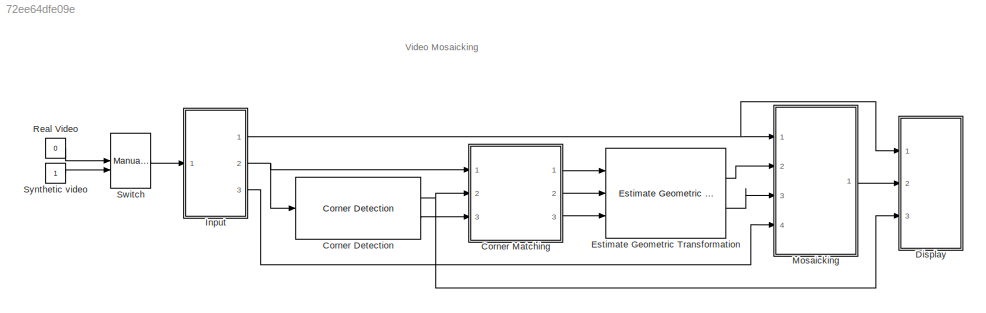
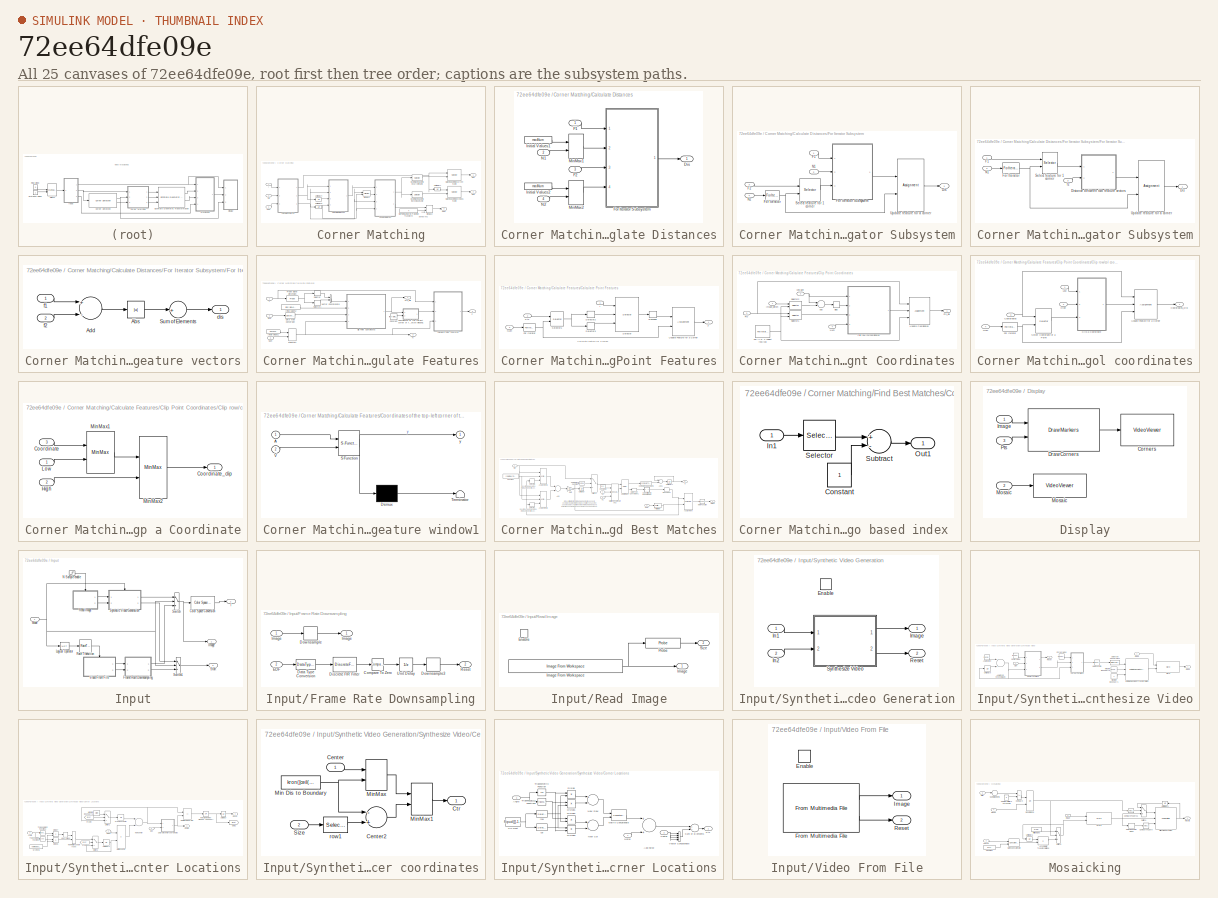
[diagram: thumbnail index - all 25 canvases of the model, root first then tree order]
MODEL slx_72ee64dfe09e
KIND model
CONFIG AbsTol = auto
CONFIG EnableMultiTasking = on
CONFIG FixedStep = auto
CONFIG MaxStep = auto
CONFIG MinStep = auto
CONFIG RelTol = 1e-3
CONFIG SampleTimeConstraint = Unconstrained
CONFIG Solver = FixedStepDiscrete
CONFIG SolverName = FixedStepDiscrete
CONFIG StartTime = 0.0
CONFIG StopTime = inf
BLOCK [Reference] Corner Detection  REF=visionanalysis/Corner Detection
  Ports = [1, 2]
  SourceBlock = visionanalysis/Corner Detection
  SourceProductBaseCode = VP
  SourceProductName = Computer Vision Toolbox
  SourceType = Corner Detection
BLOCK [SubSystem] Corner Matching
  Ports = [3, 3]
  RequestExecContextInheritance = off
BLOCK [SubSystem] Corner Matching/Calculate Distances
  AttributesFormatString = between features.
  Ports = [4, 1]
  RequestExecContextInheritance = off
  TreatAsAtomicUnit = on
BLOCK [Outport] Corner Matching/Calculate Distances/Dis
  IconDisplay = Port number
BLOCK [Inport] Corner Matching/Calculate Distances/F1
  IconDisplay = Port number
BLOCK [Inport] Corner Matching/Calculate Distances/F2
  IconDisplay = Port number
  Port = 3
BLOCK [SubSystem] Corner Matching/Calculate Distances/For Iterator Subsystem
  Ports = [4, 1]
  RequestExecContextInheritance = off
  TreatAsAtomicUnit = on
BLOCK [Outport] Corner Matching/Calculate Distances/For Iterator Subsystem/Dis
  IconDisplay = Port number
BLOCK [Inport] Corner Matching/Calculate Distances/For Iterator Subsystem/F1
  IconDisplay = Port number
BLOCK [Inport] Corner Matching/Calculate Distances/For Iterator Subsystem/F2
  IconDisplay = Port number
  Port = 3
BLOCK [ForIterator] Corner Matching/Calculate Distances/For Iterator Subsystem/For Iterator
  IndexMode = Zero-based
  IterationSource = external
  Ports = [1, 1]
BLOCK [SubSystem] Corner Matching/Calculate Distances/For Iterator Subsystem/For Iterator Subsystem
  Ports = [3, 1]
  RequestExecContextInheritance = off
  TreatAsAtomicUnit = on
BLOCK [Outport] Corner Matching/Calculate Distances/For Iterator Subsystem/For Iterator Subsystem/Dis
  IconDisplay = Port number
BLOCK [SubSystem] Corner Matching/Calculate Distances/For Iterator Subsystem/For Iterator Subsystem/Distance between two feature vectors
  Ports = [2, 1]
  RequestExecContextInheritance = off
BLOCK [Abs] Corner Matching/Calculate Distances/For Iterator Subsystem/For Iterator Subsystem/Distance between two feature vectors/Abs
  SaturateOnIntegerOverflow = off
BLOCK [Sum] Corner Matching/Calculate Distances/For Iterator Subsystem/For Iterator Subsystem/Distance between two feature vectors/Add
  InputSameDT = off
  Inputs = +-
  OutDataTypeStr = Inherit: Inherit via internal rule
  Ports = [2, 1]
  SaturateOnIntegerOverflow = off
BLOCK [Sum] Corner Matching/Calculate Distances/For Iterator Subsystem/For Iterator Subsystem/Distance between two feature vectors/Sum of Elements
  InputSameDT = off
  Inputs = +
  OutDataTypeStr = Inherit: Inherit via internal rule
  Ports = [1, 1]
  SaturateOnIntegerOverflow = off
BLOCK [Outport] Corner Matching/Calculate Distances/For Iterator Subsystem/For Iterator Subsystem/Distance between two feature vectors/dis
  IconDisplay = Port number
BLOCK [Inport] Corner Matching/Calculate Distances/For Iterator Subsystem/For Iterator Subsystem/Distance between two feature vectors/f1
  IconDisplay = Port number
BLOCK [Inport] Corner Matching/Calculate Distances/For Iterator Subsystem/For Iterator Subsystem/Distance between two feature vectors/f2
  IconDisplay = Port number
  Port = 2
BLOCK [Inport] Corner Matching/Calculate Distances/For Iterator Subsystem/For Iterator Subsystem/F1
  IconDisplay = Port number
BLOCK [ForIterator] Corner Matching/Calculate Distances/For Iterator Subsystem/For Iterator Subsystem/For Iterator
  IndexMode = Zero-based
  IterationSource = external
  Ports = [1, 1]
BLOCK [Inport] Corner Matching/Calculate Distances/For Iterator Subsystem/For Iterator Subsystem/N1
  IconDisplay = Port number
  Port = 2
BLOCK [Selector] Corner Matching/Calculate Distances/For Iterator Subsystem/For Iterator Subsystem/Select feature for 1 corner
  IndexMode = Zero-based
  IndexOptions = Index vector (port),Select all
  Indices = 0,1
  InputPortWidth = 2
  NumberOfDimensions = 2
  OutputSizes = 1,1
  Ports = [2, 1]
BLOCK [Assignment] Corner Matching/Calculate Distances/For Iterator Subsystem/For Iterator Subsystem/Update feature for a corner
  IndexMode = Zero-based
  IndexOptions = Index vector (port),Assign all
  Indices = 1,1
  NumberOfDimensions = 2
  OutputInitialize = Specify size for each dimension in table
  OutputSizes = maxNum,1
  Ports = [2, 1]
BLOCK [Inport] Corner Matching/Calculate Distances/For Iterator Subsystem/For Iterator Subsystem/f2
  IconDisplay = Port number
  Port = 3
BLOCK [Inport] Corner Matching/Calculate Distances/For Iterator Subsystem/N1
  IconDisplay = Port number
  Port = 2
BLOCK [Inport] Corner Matching/Calculate Distances/For Iterator Subsystem/N2
  IconDisplay = Port number
  Port = 4
BLOCK [Selector] Corner Matching/Calculate Distances/For Iterator Subsystem/Select feature for 1 corner
  IndexMode = Zero-based
  IndexOptions = Index vector (port),Select all
  Indices = 0,1
  InputPortWidth = 2
  NumberOfDimensions = 2
  OutputSizes = 1,1
  Ports = [2, 1]
BLOCK [Assignment] Corner Matching/Calculate Distances/For Iterator Subsystem/Update feature for a corner
  IndexMode = Zero-based
  IndexOptions = Assign all,Index vector (port)
  Indices = 1,1
  NumberOfDimensions = 2
  OutputInitialize = Specify size for each dimension in table
  OutputSizes = maxNum,maxNum
  Ports = [2, 1]
BLOCK [Constant] Corner Matching/Calculate Distances/Initial Values1
  OutDataTypeStr = Inherit: Inherit via back propagation
  SampleTime = -1
  Value = maxNum
BLOCK [Constant] Corner Matching/Calculate Distances/Initial Values2
  OutDataTypeStr = Inherit: Inherit via back propagation
  SampleTime = -1
  Value = maxNum
BLOCK [MinMax] Corner Matching/Calculate Distances/MinMax1
  InputSameDT = off
  Inputs = 2
  Ports = [2, 1]
  SaturateOnIntegerOverflow = off
BLOCK [MinMax] Corner Matching/Calculate Distances/MinMax2
  InputSameDT = off
  Inputs = 2
  Ports = [2, 1]
  SaturateOnIntegerOverflow = off
BLOCK [Inport] Corner Matching/Calculate Distances/N1
  IconDisplay = Port number
  Port = 2
BLOCK [Inport] Corner Matching/Calculate Distances/N2
  IconDisplay = Port number
  Port = 4
BLOCK [SubSystem] Corner Matching/Calculate Features
  Ports = [3, 3]
  RequestExecContextInheritance = off
  TreatAsAtomicUnit = on
BLOCK [SubSystem] Corner Matching/Calculate Features/Calculate Point Features
  Ports = [3, 1]
  RequestExecContextInheritance = off
BLOCK [Outport] Corner Matching/Calculate Features/Calculate Point Features/F
  IconDisplay = Port number
BLOCK [ForIterator] Corner Matching/Calculate Features/Calculate Point Features/For Iterator
  IndexMode = Zero-based
  IterationSource = external
  Ports = [1, 1]
BLOCK [Inport] Corner Matching/Calculate Features/Calculate Point Features/I
  IconDisplay = Port number
BLOCK [Inport] Corner Matching/Calculate Features/Calculate Point Features/Num
  IconDisplay = Port number
  Port = 3
BLOCK [Inport] Corner Matching/Calculate Features/Calculate Point Features/Pts
  IconDisplay = Port number
  Port = 2
BLOCK [Reshape] Corner Matching/Calculate Features/Calculate Point Features/Reshape
  OutputDimensionality = Row vector (2-D)
  Ports = [1, 1]
BLOCK [Selector] Corner Matching/Calculate Features/Calculate Point Features/Selector
  IndexMode = Zero-based
  IndexOptions = Starting index (port),Starting index (port)
  Indices = [1 3],1
  InputPortWidth = 3
  NumberOfDimensions = 2
  OutputSizes = winLen,winLen
  Ports = [3, 1]
BLOCK [Selector] Corner Matching/Calculate Features/Calculate Point Features/Selector1
  IndexMode = Zero-based
  IndexOptions = Index vector (port),Select all
  Indices = [1 3],1
  InputPortWidth = 3
  NumberOfDimensions = 2
  OutputSizes = 9,9
  Ports = [2, 1]
BLOCK [Selector] Corner Matching/Calculate Features/Calculate Point Features/Selector2
  IndexMode = Zero-based
  IndexOptions = Index vector (dialog)
  Indices = 1
  InputPortWidth = 2
  OutputSizes = 9
  Ports = [1, 1]
BLOCK [Selector] Corner Matching/Calculate Features/Calculate Point Features/Selector3
  IndexMode = Zero-based
  IndexOptions = Index vector (dialog)
  Indices = 0
  InputPortWidth = 2
  OutputSizes = 9
  Ports = [1, 1]
BLOCK [Assignment] Corner Matching/Calculate Features/Calculate Point Features/Update Feature for a Corner
  IndexMode = Zero-based
  IndexOptions = Index vector (port),Assign all
  Indices = 1,1
  NumberOfDimensions = 2
  OutputInitialize = Specify size for each dimension in table
  OutputSizes = maxNum,winLen^2
  Ports = [2, 1]
BLOCK [SubSystem] Corner Matching/Calculate Features/Clip Point Coordinates
  Ports = [4, 1]
  RequestExecContextInheritance = off
BLOCK [Sum] Corner Matching/Calculate Features/Clip Point Coordinates/Add
  InputSameDT = off
  Inputs = -+
  OutDataTypeStr = Inherit: Inherit via internal rule
  Ports = [2, 1]
  SaturateOnIntegerOverflow = off
BLOCK [Bias] Corner Matching/Calculate Features/Clip Point Coordinates/Bias
  Bias = -1
  SaturateOnIntegerOverflow = off
BLOCK [SubSystem] Corner Matching/Calculate Features/Clip Point Coordinates/Clip row//col coordinates
  Ports = [4, 1]
  RequestExecContextInheritance = off
BLOCK [SubSystem] Corner Matching/Calculate Features/Clip Point Coordinates/Clip row//col coordinates/Clip a Coordinate
  Ports = [3, 1]
  RequestExecContextInheritance = off
BLOCK [Inport] Corner Matching/Calculate Features/Clip Point Coordinates/Clip row//col coordinates/Clip a Coordinate/Coordinate
  IconDisplay = Port number
  Port = 3
BLOCK [Outport] Corner Matching/Calculate Features/Clip Point Coordinates/Clip row//col coordinates/Clip a Coordinate/Coordinate_clip
  IconDisplay = Port number
BLOCK [Inport] Corner Matching/Calculate Features/Clip Point Coordinates/Clip row//col coordinates/Clip a Coordinate/High
  IconDisplay = Port number
  Port = 2
BLOCK [Inport] Corner Matching/Calculate Features/Clip Point Coordinates/Clip row//col coordinates/Clip a Coordinate/Low
  IconDisplay = Port number
BLOCK [MinMax] Corner Matching/Calculate Features/Clip Point Coordinates/Clip row//col coordinates/Clip a Coordinate/MinMax1
  Function = max
  InputSameDT = off
  Inputs = 2
  Ports = [2, 1]
  SaturateOnIntegerOverflow = off
BLOCK [MinMax] Corner Matching/Calculate Features/Clip Point Coordinates/Clip row//col coordinates/Clip a Coordinate/MinMax2
  InputSameDT = off
  Inputs = 2
  Ports = [2, 1]
  SaturateOnIntegerOverflow = off
BLOCK [Inport] Corner Matching/Calculate Features/Clip Point Coordinates/Clip row//col coordinates/Coordinates
  IconDisplay = Port number
  Port = 3
BLOCK [Outport] Corner Matching/Calculate Features/Clip Point Coordinates/Clip row//col coordinates/Coordinates_clip
  IconDisplay = Port number
BLOCK [ForIterator] Corner Matching/Calculate Features/Clip Point Coordinates/Clip row//col coordinates/For Iterator
  IndexMode = Zero-based
  IterationLimit = 2
  IterationSource = external
  Ports = [1, 1]
BLOCK [Inport] Corner Matching/Calculate Features/Clip Point Coordinates/Clip row//col coordinates/High
  IconDisplay = Port number
  Port = 2
BLOCK [Inport] Corner Matching/Calculate Features/Clip Point Coordinates/Clip row//col coordinates/Low
  IconDisplay = Port number
BLOCK [Inport] Corner Matching/Calculate Features/Clip Point Coordinates/Clip row//col coordinates/Num
  IconDisplay = Port number
  Port = 4
BLOCK [Selector] Corner Matching/Calculate Features/Clip Point Coordinates/Clip row//col coordinates/Select Coordinate of a Point
  IndexMode = Zero-based
  IndexOptions = Index vector (port),Select all
  Indices = [1 3],1
  InputPortWidth = 3
  NumberOfDimensions = 2
  OutputSizes = 9,1
  Ports = [2, 1]
BLOCK [Assignment] Corner Matching/Calculate Features/Clip Point Coordinates/Clip row//col coordinates/Update Feature for a Corner
  IndexMode = Zero-based
  IndexOptions = Index vector (port),Assign all
  Indices = 1,1
  NumberOfDimensions = 2
  OutputSizes = 81,50
  Ports = [3, 1]
BLOCK [ForIterator] Corner Matching/Calculate Features/Clip Point Coordinates/For i = 0: 1 (select row//col)
  IndexMode = Zero-based
  IterationLimit = 2
  Ports = [0, 1]
BLOCK [Inport] Corner Matching/Calculate Features/Clip Point Coordinates/Image_dimen
  IconDisplay = Port number
BLOCK [Inport] Corner Matching/Calculate Features/Clip Point Coordinates/Num
  IconDisplay = Port number
  Port = 4
BLOCK [Inport] Corner Matching/Calculate Features/Clip Point Coordinates/Pts
  IconDisplay = Port number
  Port = 3
BLOCK [Outport] Corner Matching/Calculate Features/Clip Point Coordinates/Pts_clip
  IconDisplay = Port number
BLOCK [Selector] Corner Matching/Calculate Features/Clip Point Coordinates/Selector1
  IndexMode = Zero-based
  IndexOptions = Select all,Index vector (port)
  Indices = [1 3],1
  InputPortWidth = 3
  NumberOfDimensions = 2
  OutputSizes = 9,9
  Ports = [2, 1]
BLOCK [Selector] Corner Matching/Calculate Features/Clip Point Coordinates/Selector2
  IndexMode = Zero-based
  IndexOptions = Index vector (port)
  Indices = [1 3]
  InputPortWidth = 2
  OutputSizes = 9
  Ports = [2, 1]
BLOCK [Assignment] Corner Matching/Calculate Features/Clip Point Coordinates/Update Coordinates
  IndexMode = Zero-based
  IndexOptions = Assign all,Index vector (port)
  Indices = 1,1
  NumberOfDimensions = 2
  OutputSizes = 81,50
  Ports = [3, 1]
BLOCK [Inport] Corner Matching/Calculate Features/Clip Point Coordinates/Win_size
  IconDisplay = Port number
  Port = 2
BLOCK [Constant] Corner Matching/Calculate Features/Constant
  OutDataTypeStr = int32
  Value = floor([winLen; winLen] / 2)
BLOCK [SubSystem] Corner Matching/Calculate Features/Coordinates of the top-left corner of the feature window1
  ErrorFcn = Stateflow.Translate.translate
  PermitHierarchicalResolution = ExplicitOnly
  Ports = [2, 1]
  RequestExecContextInheritance = off
  SFBlockType = MATLAB Function
  TreatAsAtomicUnit = on
BLOCK [Demux] Corner Matching/Calculate Features/Coordinates of the top-left corner of the feature window1/ Demux 
  Outputs = 1
  Ports = [1, 1]
BLOCK [S-Function] Corner Matching/Calculate Features/Coordinates of the top-left corner of the feature window1/ SFunction 
  EnableBusSupport = on
  FunctionName = sf_sfun
  PortCounts = [2 2]
  Ports = [2, 2]
  SFcnIsStateOwnerBlock = off
  SFunctionDeploymentMode = off
  Tag = Stateflow S-Function 2
BLOCK [Terminator] Corner Matching/Calculate Features/Coordinates of the top-left corner of the feature window1/ Terminator 
BLOCK [Inport] Corner Matching/Calculate Features/Coordinates of the top-left corner of the feature window1/A
  IconDisplay = Port number
BLOCK [Inport] Corner Matching/Calculate Features/Coordinates of the top-left corner of the feature window1/V
  IconDisplay = Port number
  Port = 2
BLOCK [Outport] Corner Matching/Calculate Features/Coordinates of the top-left corner of the feature window1/y
  IconDisplay = Port number
BLOCK [DataTypeConversion] Corner Matching/Calculate Features/Data Type Conversion
  OutDataTypeStr = int32
  RndMeth = Floor
  SaturateOnIntegerOverflow = off
BLOCK [Outport] Corner Matching/Calculate Features/F
  IconDisplay = Port number
  Port = 2
BLOCK [Inport] Corner Matching/Calculate Features/I
  IconDisplay = Port number
BLOCK [Constant] Corner Matching/Calculate Features/Initial Values1
  OutDataTypeStr = Inherit: Inherit via back propagation
  SampleTime = -1
  Value = maxNum
BLOCK [Constant] Corner Matching/Calculate Features/Initial Values2
  OutDataTypeStr = Inherit: Inherit via back propagation
  SampleTime = -1
  Value = floor(winLen/2)
BLOCK [MinMax] Corner Matching/Calculate Features/MinMax1
  InputSameDT = off
  Inputs = 2
  Ports = [2, 1]
  SaturateOnIntegerOverflow = off
BLOCK [Outport] Corner Matching/Calculate Features/N
  IconDisplay = Port number
  Port = 3
BLOCK [Inport] Corner Matching/Calculate Features/Num
  IconDisplay = Port number
  Port = 3
BLOCK [Probe] Corner Matching/Calculate Features/Probe signal dimension
  Ports = [1, 1]
  ProbeComplexSignal = off
  ProbeDimensionsDataType = int32
  ProbeSampleTime = off
  ProbeSignalDimensions = on
  ProbeWidth = off
BLOCK [Inport] Corner Matching/Calculate Features/Pts
  IconDisplay = Port number
  Port = 2
BLOCK [Outport] Corner Matching/Calculate Features/Pts_clip
  IconDisplay = Port number
BLOCK [Selector] Corner Matching/Calculate Features/Selector
  IndexOptions = Index vector (dialog)
  Indices = 2
  InputPortWidth = 2
  OutputSizes = 1
  Ports = [1, 1]
BLOCK [Selector] Corner Matching/Calculate Features/Selector1
  IndexOptions = Index vector (dialog)
  Indices = 1
  InputPortWidth = 2
  OutputSizes = 1
  Ports = [1, 1]
BLOCK [Concatenate] Corner Matching/Calculate Features/Vector Concatenate
  Ports = [2, 1]
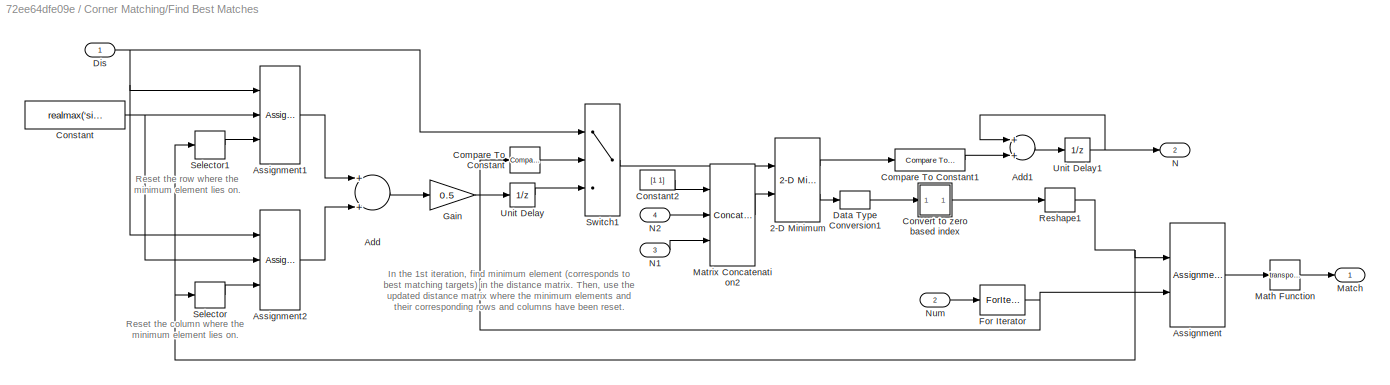
BLOCK [SubSystem] Corner Matching/Find Best Matches
  AttributesFormatString = between the features\nin the current and previous frames
  Ports = [4, 2]
  RequestExecContextInheritance = off
  TreatAsAtomicUnit = on
BLOCK [Reference] Corner Matching/Find Best Matches/2-D Minimum  REF=visionstatistics/2-D Minimum
  Ports = [2, 2]
  SourceBlock = visionstatistics/2-D Minimum
  SourceProductBaseCode = VP
  SourceProductName = Computer Vision Toolbox
  SourceType = 2-D Minimum
  UserDataPersistent = on
BLOCK [Sum] Corner Matching/Find Best Matches/Add
  InputSameDT = off
  OutDataTypeStr = Inherit: Inherit via internal rule
  Ports = [2, 1]
  SaturateOnIntegerOverflow = off
BLOCK [Sum] Corner Matching/Find Best Matches/Add1
  InputSameDT = off
  OutDataTypeStr = int32
  Ports = [2, 1]
  SaturateOnIntegerOverflow = off
BLOCK [Assignment] Corner Matching/Find Best Matches/Assignment
  IndexMode = Zero-based
  IndexOptions = Assign all,Index vector (port)
  Indices = -1,-1
  NumberOfDimensions = 2
  OutputInitialize = Specify size for each dimension in table
  OutputSizes = 2,maxNum
  Ports = [2, 1]
BLOCK [Assignment] Corner Matching/Find Best Matches/Assignment1
  IndexMode = Zero-based
  IndexOptions = Index vector (port),Assign all
  Indices = 1,-1
  NumberOfDimensions = 2
  OutputSizes = 1,1
  Ports = [3, 1]
BLOCK [Assignment] Corner Matching/Find Best Matches/Assignment2
  IndexMode = Zero-based
  IndexOptions = Assign all,Index vector (port)
  Indices = -1,-1
  NumberOfDimensions = 2
  OutputSizes = 1,1
  Ports = [3, 1]
BLOCK [Reference] Corner Matching/Find Best Matches/Compare To Constant  REF=simulink/Logic and Bit
Operations/Compare
To Constant
  Ports = [1, 1]
  SourceBlock = simulink/Logic and Bit\nOperations/Compare\nTo Constant
  SourceProductBaseCode = SL
  SourceProductName = Simulink
  SourceType = Compare To Constant
BLOCK [Reference] Corner Matching/Find Best Matches/Compare To Constant1  REF=simulink/Logic and Bit
Operations/Compare
To Constant
  Ports = [1, 1]
  SourceBlock = simulink/Logic and Bit\nOperations/Compare\nTo Constant
  SourceProductBaseCode = SL
  SourceProductName = Simulink
  SourceType = Compare To Constant
BLOCK [Constant] Corner Matching/Find Best Matches/Constant
  OutDataTypeStr = Inherit: Inherit via back propagation
  Value = realmax('single')
  VectorParams1D = off
BLOCK [Constant] Corner Matching/Find Best Matches/Constant2
  OutDataTypeStr = Inherit: Inherit via back propagation
  Value = [1 1]
  VectorParams1D = off
BLOCK [SubSystem] Corner Matching/Find Best Matches/Convert to zero based index 
  Ports = [1, 1]
  RequestExecContextInheritance = off
BLOCK [Constant] Corner Matching/Find Best Matches/Convert to zero based index /Constant
BLOCK [Inport] Corner Matching/Find Best Matches/Convert to zero based index /In1
  IconDisplay = Port number
BLOCK [Outport] Corner Matching/Find Best Matches/Convert to zero based index /Out1
  IconDisplay = Port number
BLOCK [Selector] Corner Matching/Find Best Matches/Convert to zero based index /Selector
  IndexOptions = Select all,Index vector (dialog)
  Indices = [1 3],[2 1]
  InputPortWidth = 3
  NumberOfDimensions = 2
  OutputSizes = 1,1
  Ports = [1, 1]
BLOCK [Sum] Corner Matching/Find Best Matches/Convert to zero based index /Subtract
  InputSameDT = off
  Inputs = +-
  OutDataTypeStr = Inherit: Inherit via internal rule
  Ports = [2, 1]
  SaturateOnIntegerOverflow = off
BLOCK [DataTypeConversion] Corner Matching/Find Best Matches/Data Type Conversion1
  OutDataTypeStr = int32
BLOCK [Inport] Corner Matching/Find Best Matches/Dis
  IconDisplay = Port number
BLOCK [ForIterator] Corner Matching/Find Best Matches/For Iterator
  IndexMode = Zero-based
  IterationLimit = expLaneNum
  IterationSource = external
  Ports = [1, 1]
  ResetStates = reset
BLOCK [Gain] Corner Matching/Find Best Matches/Gain
  Gain = 0.5
  OutDataTypeStr = Inherit: Inherit via internal rule
  ParamDataTypeStr = Inherit: Inherit via internal rule
  SaturateOnIntegerOverflow = off
BLOCK [Outport] Corner Matching/Find Best Matches/Match
  IconDisplay = Port number
BLOCK [Math] Corner Matching/Find Best Matches/Math Function
  Operator = transpose
  Ports = [1, 1]
BLOCK [Concatenate] Corner Matching/Find Best Matches/Matrix Concatenation2
  ConcatenateDimension = 2
  Mode = Multidimensional array
  NumInputs = 3
  Ports = [3, 1]
BLOCK [Outport] Corner Matching/Find Best Matches/N
  IconDisplay = Port number
  Port = 2
BLOCK [Inport] Corner Matching/Find Best Matches/N1
  IconDisplay = Port number
  Port = 3
BLOCK [Inport] Corner Matching/Find Best Matches/N2
  IconDisplay = Port number
  Port = 4
BLOCK [Inport] Corner Matching/Find Best Matches/Num
  IconDisplay = Port number
  Port = 2
BLOCK [Reshape] Corner Matching/Find Best Matches/Reshape1
  OutputDimensionality = Column vector (2-D)
  Ports = [1, 1]
BLOCK [Selector] Corner Matching/Find Best Matches/Selector
  IndexMode = Zero-based
  IndexOptions = Index vector (dialog)
  Indices = 1
  InputPortWidth = 2
  OutputSizes = 1
  Ports = [1, 1]
BLOCK [Selector] Corner Matching/Find Best Matches/Selector1
  IndexMode = Zero-based
  IndexOptions = Index vector (dialog)
  Indices = 0
  InputPortWidth = 2
  OutputSizes = 1
  Ports = [1, 1]
BLOCK [Switch] Corner Matching/Find Best Matches/Switch1
  Criteria = u2 ~= 0
  InputSameDT = off
  SaturateOnIntegerOverflow = off
BLOCK [UnitDelay] Corner Matching/Find Best Matches/Unit Delay
  HasFrameUpgradeWarning = on
  SampleTime = -1
BLOCK [UnitDelay] Corner Matching/Find Best Matches/Unit Delay1
  HasFrameUpgradeWarning = on
  SampleTime = -1
BLOCK [Inport] Corner Matching/I
  IconDisplay = Port number
BLOCK [Selector] Corner Matching/Idx of matching points in current frame
  IndexMode = Zero-based
  IndexOptions = Select all,Index vector (dialog)
  Indices = 0,0
  InputPortWidth = 2
  NumberOfDimensions = 2
  OutputSizes = 1,1
  Ports = [1, 1]
BLOCK [Selector] Corner Matching/Idx of matching points in previous frame
  IndexMode = Zero-based
  IndexOptions = Select all,Index vector (dialog)
  Indices = 1,1
  InputPortWidth = 2
  NumberOfDimensions = 2
  OutputSizes = 1,1
  Ports = [1, 1]
BLOCK [Selector] Corner Matching/Matching points in current frame
  IndexMode = Zero-based
  IndexOptions = Index vector (port),Select all
  Indices = 0,1
  InputPortWidth = 2
  NumberOfDimensions = 2
  OutputSizes = 1,1
  Ports = [2, 1]
BLOCK [Selector] Corner Matching/Matching points in previous frame
  IndexMode = Zero-based
  IndexOptions = Index vector (port),Select all
  Indices = 0,1
  InputPortWidth = 2
  NumberOfDimensions = 2
  OutputSizes = 1,1
  Ports = [2, 1]
BLOCK [Constant] Corner Matching/Min Point Number for Projective Transform
  OutDataTypeStr = Inherit: Inherit via back propagation
  Value = 4
BLOCK [MinMax] Corner Matching/MinMax1
  InputSameDT = off
  Inputs = 2
  Ports = [2, 1]
  SaturateOnIntegerOverflow = off
BLOCK [MinMax] Corner Matching/MinMax2
  Function = max
  InputSameDT = off
  Inputs = 2
  OutDataTypeStr = Inherit: Inherit via back propagation
  Ports = [2, 1]
  SaturateOnIntegerOverflow = off
BLOCK [Inport] Corner Matching/Num
  IconDisplay = Port number
  Port = 3
BLOCK [Outport] Corner Matching/Num 
  IconDisplay = Port number
  Port = 3
BLOCK [Inport] Corner Matching/Pts
  IconDisplay = Port number
  Port = 2
BLOCK [Outport] Corner Matching/Pts1
  IconDisplay = Port number
BLOCK [Outport] Corner Matching/Pts2
  IconDisplay = Port number
  Port = 2
BLOCK [UnitDelay] Corner Matching/Unit Delay4
  HasFrameUpgradeWarning = on
  SampleTime = -1
BLOCK [UnitDelay] Corner Matching/Unit Delay6
  HasFrameUpgradeWarning = on
  SampleTime = -1
BLOCK [UnitDelay] Corner Matching/Unit Delay7
  HasFrameUpgradeWarning = on
  SampleTime = -1
BLOCK [SubSystem] Display
  Ports = [3]
  RequestExecContextInheritance = off
BLOCK [VideoViewer] Display/Corners
  FigPos = [34 421 347 276]
  Ports = [1]
  ScopeSpecificationString = vipscopes.VideoViewerScopeCfg('CurrentConfiguration', extmgr.ConfigurationSet(extmgr.Configuration('Core','General UI',true,'ShowPlaybackToolbar',false,'FigureProperties',[],'FigureColor',[0.701960784313725 0.701960784313725 0.701960784313725]),extmgr.Configuration('Core','Source UI',true),extmgr.Configuration('Sources','Streaming',false),extmgr.Configuration('Sources','File',false),extmgr.Configu...<+1095ch>
  colormapValue = gray(256)
  trueSizedOnce = on
BLOCK [Reference] Display/Draw Corners  REF=visiontextngfix/Draw Markers
  Ports = [2, 1]
  SourceBlock = visiontextngfix/Draw Markers
  SourceProductBaseCode = VP
  SourceProductName = Computer Vision Toolbox
  SourceType = Draw Markers
BLOCK [Inport] Display/Image
  IconDisplay = Port number
BLOCK [Inport] Display/Mosaic
  IconDisplay = Port number
  Port = 2
BLOCK [VideoViewer] Display/Mosaic 
  FigPos = [316 547 689 427]
  Ports = [1]
  ScopeSpecificationString = vipscopes.VideoViewerScopeCfg('CurrentConfiguration', extmgr.ConfigurationSet(extmgr.Configuration('Core','General UI',true,'FigureProperties',[],'FigureColor',[0.701960784313725 0.701960784313725 0.701960784313725]),extmgr.Configuration('Core','Source UI',true),extmgr.Configuration('Sources','File',false),extmgr.Configuration('Sources','Streaming',false),extmgr.Configuration('Sources','Workspace'...<+1085ch>
  colormapValue = gray(256)
  trueSizedOnce = on
BLOCK [Inport] Display/Pts
  IconDisplay = Port number
  Port = 3
BLOCK [Reference] Estimate Geometric Transformation  REF=visiongeotforms/Estimate Geometric
Transformation
  Ports = [3, 2]
  SourceBlock = visiongeotforms/Estimate Geometric\nTransformation
  SourceProductBaseCode = VP
  SourceProductName = Computer Vision Toolbox
  SourceType = Estimate Geometric Transformation
BLOCK [SubSystem] Input
  Ports = [1, 3]
  RequestExecContextInheritance = off
BLOCK [Reference] Input/Color Space Conversion  REF=visionconversions/Color Space
 Conversion
  Ports = [1, 1]
  SourceBlock = visionconversions/Color Space\n Conversion
  SourceProductBaseCode = VP
  SourceProductName = Computer Vision Toolbox
  SourceType = Color Space Conversion
BLOCK [SubSystem] Input/Frame Rate Downsampling
  Ports = [2, 2]
  RequestExecContextInheritance = off
BLOCK [Reference] Input/Frame Rate Downsampling/Compare To Zero  REF=simulink/Logic and Bit
Operations/Compare
To Zero
  Ports = [1, 1]
  SourceBlock = simulink/Logic and Bit\nOperations/Compare\nTo Zero
  SourceProductBaseCode = SL
  SourceProductName = Simulink
  SourceType = Compare To Zero
BLOCK [DataTypeConversion] Input/Frame Rate Downsampling/Data Type Conversion
  OutDataTypeStr = single
  RndMeth = Floor
  SaturateOnIntegerOverflow = off
BLOCK [DiscreteFir] Input/Frame Rate Downsampling/Discrete FIR Filter
  Coefficients = ones(1, frameRate)
  InputPortMap = u0
  OutputPortMap = o0
  Ports = [1, 1]
BLOCK [DownSample] Input/Frame Rate Downsampling/Downsample
  InputProcessing = Elements as channels (sample based)
  N = frameRate
  RateOptions = Allow multirate processing
  UserDataPersistent = on
BLOCK [DownSample] Input/Frame Rate Downsampling/Downsample3
  InputProcessing = Elements as channels (sample based)
  N = frameRate
  RateOptions = Allow multirate processing
  UserDataPersistent = on
BLOCK [Inport] Input/Frame Rate Downsampling/EOF
  IconDisplay = Port number
  Port = 2
BLOCK [Inport] Input/Frame Rate Downsampling/Image
  IconDisplay = Port number
BLOCK [Outport] Input/Frame Rate Downsampling/Image 
  IconDisplay = Port number
BLOCK [Outport] Input/Frame Rate Downsampling/Reset
  IconDisplay = Port number
  Port = 2
BLOCK [UnitDelay] Input/Frame Rate Downsampling/Unit Delay
  HasFrameUpgradeWarning = on
  InitialCondition = 1
  SampleTime = -1
BLOCK [Outport] Input/I
  IconDisplay = Port number
  Port = 2
BLOCK [Outport] Input/Image
  IconDisplay = Port number
BLOCK [Logic] Input/Logical Operator
  AllPortsSameDT = off
  Operator = NOT
  OutDataTypeStr = boolean
  Ports = [1, 1]
BLOCK [Inport] Input/Mode
  IconDisplay = Port number
BLOCK [Step] Input/N Sample enable
  After = 0
  Before = 1
  Time = eps
BLOCK [RateTransition] Input/Rate Transition
  OutPortSampleTimeOpt = Inherit
BLOCK [SubSystem] Input/Read Image
  AttributesFormatString = Load image only at the beginning of simulation
  Ports = [0, 2, 1]
  RequestExecContextInheritance = off
BLOCK [EnablePort] Input/Read Image/Enable
  Ports = []
  PropagateVarSize = During execution
BLOCK [Outport] Input/Read Image/Image
  IconDisplay = Port number
  InitialOutput = 0
BLOCK [Reference] Input/Read Image/Image From Workspace  REF=visionsources/Image From Workspace
  Ports = [0, 1]
  SourceBlock = visionsources/Image From Workspace
  SourceProductBaseCode = VP
  SourceProductName = Computer Vision Toolbox
  SourceType = Image From Workspace
  Tag = vipblks_nd
BLOCK [Probe] Input/Read Image/Probe
  Ports = [1, 1]
  ProbeComplexSignal = off
  ProbeDimensionsDataType = single
  ProbeSampleTime = off
  ProbeSignalDimensions = on
  ProbeWidth = off
BLOCK [Outport] Input/Read Image/Size
  IconDisplay = Port number
  Port = 2
BLOCK [Outport] Input/Start
  IconDisplay = Port number
  Port = 3
BLOCK [Switch] Input/Switch
  Criteria = u2 ~= 0
  InputSameDT = off
  SaturateOnIntegerOverflow = off
BLOCK [Switch] Input/Switch1
  Criteria = u2 ~= 0
  InputSameDT = off
  SaturateOnIntegerOverflow = off
BLOCK [SubSystem] Input/Synthetic Video Generation
  Ports = [2, 2, 1]
  RequestExecContextInheritance = off
BLOCK [EnablePort] Input/Synthetic Video Generation/Enable
  Ports = []
  PropagateVarSize = During execution
BLOCK [Outport] Input/Synthetic Video Generation/Image
  IconDisplay = Port number
BLOCK [Inport] Input/Synthetic Video Generation/In1
  IconDisplay = Port number
BLOCK [Inport] Input/Synthetic Video Generation/In2
  IconDisplay = Port number
  Port = 2
BLOCK [Outport] Input/Synthetic Video Generation/Reset
  IconDisplay = Port number
  InitialOutput = 1
  Port = 2
BLOCK [SubSystem] Input/Synthetic Video Generation/Synthesize Video
  Ports = [2, 2]
  RequestExecContextInheritance = off
BLOCK [RandomNumber] Input/Synthetic Video Generation/Synthesize Video/Angle Noise
  Mean = rotation * pi / 180
  Seed = rotation
  Variance = varRotation * pi / 180
BLOCK [Sum] Input/Synthetic Video Generation/Synthesize Video/Angle from horizontal axis
  InputSameDT = off
  OutDataTypeStr = Inherit: Inherit via internal rule
  Ports = [2, 1]
  SaturateOnIntegerOverflow = off
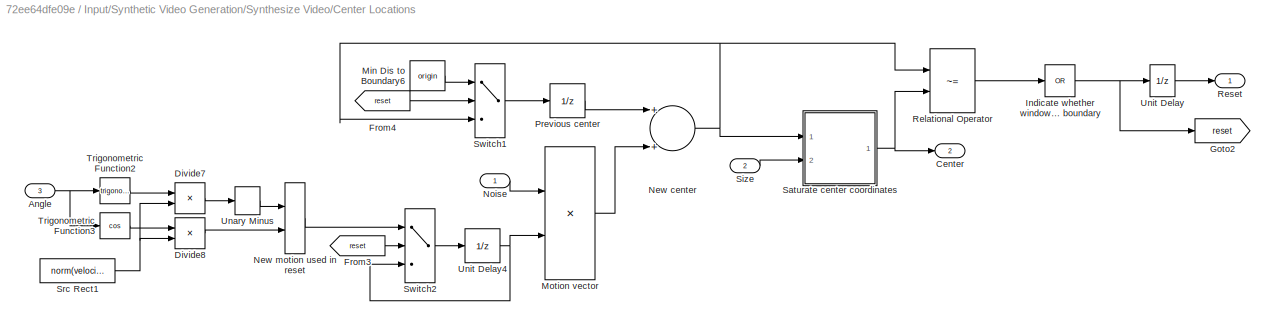
BLOCK [SubSystem] Input/Synthetic Video Generation/Synthesize Video/Center Locations
  Ports = [3, 2]
  RequestExecContextInheritance = off
BLOCK [Inport] Input/Synthetic Video Generation/Synthesize Video/Center Locations/Angle
  IconDisplay = Port number
  Port = 3
BLOCK [Outport] Input/Synthetic Video Generation/Synthesize Video/Center Locations/Center
  IconDisplay = Port number
  Port = 2
BLOCK [Product] Input/Synthetic Video Generation/Synthesize Video/Center Locations/Divide7
  InputSameDT = off
  Inputs = **
  OutDataTypeStr = Inherit: Inherit via internal rule
  Ports = [2, 1]
  RndMeth = Floor
  SaturateOnIntegerOverflow = off
BLOCK [Product] Input/Synthetic Video Generation/Synthesize Video/Center Locations/Divide8
  InputSameDT = off
  Inputs = **
  OutDataTypeStr = Inherit: Inherit via internal rule
  Ports = [2, 1]
  RndMeth = Floor
  SaturateOnIntegerOverflow = off
BLOCK [From] Input/Synthetic Video Generation/Synthesize Video/Center Locations/From3
  CloseFcn = tagdialog Close
  GotoTag = reset
BLOCK [From] Input/Synthetic Video Generation/Synthesize Video/Center Locations/From4
  CloseFcn = tagdialog Close
  GotoTag = reset
BLOCK [Goto] Input/Synthetic Video Generation/Synthesize Video/Center Locations/Goto2
  GotoTag = reset
BLOCK [Logic] Input/Synthetic Video Generation/Synthesize Video/Center Locations/Indicate whether window hit image boundary
  AllPortsSameDT = off
  Inputs = 1
  Operator = OR
  OutDataTypeStr = boolean
  Ports = [1, 1]
BLOCK [Constant] Input/Synthetic Video Generation/Synthesize Video/Center Locations/Min Dis to Boundary6
  Value = origin
BLOCK [Product] Input/Synthetic Video Generation/Synthesize Video/Center Locations/Motion vector
  InputSameDT = off
  Inputs = **
  OutDataTypeStr = Inherit: Inherit via internal rule
  Ports = [2, 1]
  RndMeth = Floor
  SaturateOnIntegerOverflow = off
BLOCK [Sum] Input/Synthetic Video Generation/Synthesize Video/Center Locations/New center
  InputSameDT = off
  OutDataTypeStr = Inherit: Inherit via internal rule
  Ports = [2, 1]
  SaturateOnIntegerOverflow = off
BLOCK [Concatenate] Input/Synthetic Video Generation/Synthesize Video/Center Locations/New motion used in reset
  Ports = [2, 1]
BLOCK [Inport] Input/Synthetic Video Generation/Synthesize Video/Center Locations/Noise
  IconDisplay = Port number
BLOCK [UnitDelay] Input/Synthetic Video Generation/Synthesize Video/Center Locations/Previous center
  HasFrameUpgradeWarning = on
  InitialCondition = origin
  SampleTime = -1
BLOCK [RelationalOperator] Input/Synthetic Video Generation/Synthesize Video/Center Locations/Relational Operator
  InputSameDT = off
  Operator = ~=
  OutDataTypeStr = boolean
  Ports = [2, 1]
BLOCK [Outport] Input/Synthetic Video Generation/Synthesize Video/Center Locations/Reset
  IconDisplay = Port number
BLOCK [SubSystem] Input/Synthetic Video Generation/Synthesize Video/Center Locations/Saturate center coordinates
  Ports = [2, 1]
  RequestExecContextInheritance = off
BLOCK [Inport] Input/Synthetic Video Generation/Synthesize Video/Center Locations/Saturate center coordinates/Center
  IconDisplay = Port number
BLOCK [Sum] Input/Synthetic Video Generation/Synthesize Video/Center Locations/Saturate center coordinates/Center2
  InputSameDT = off
  Inputs = -+
  OutDataTypeStr = Inherit: Inherit via internal rule
  Ports = [2, 1]
  SaturateOnIntegerOverflow = off
BLOCK [Outport] Input/Synthetic Video Generation/Synthesize Video/Center Locations/Saturate center coordinates/Ctr
  IconDisplay = Port number
BLOCK [Constant] Input/Synthetic Video Generation/Synthesize Video/Center Locations/Saturate center coordinates/Min Dis to Boundary
  Value = kron([ceil(sqrt(dimen(1)^2+dimen(2)^2)/2)], [1; 1])
BLOCK [MinMax] Input/Synthetic Video Generation/Synthesize Video/Center Locations/Saturate center coordinates/MinMax
  Function = max
  InputSameDT = off
  Inputs = 2
  Ports = [2, 1]
  SaturateOnIntegerOverflow = off
BLOCK [MinMax] Input/Synthetic Video Generation/Synthesize Video/Center Locations/Saturate center coordinates/MinMax1
  InputSameDT = off
  Inputs = 2
  Ports = [2, 1]
  SaturateOnIntegerOverflow = off
BLOCK [Inport] Input/Synthetic Video Generation/Synthesize Video/Center Locations/Saturate center coordinates/Size
  IconDisplay = Port number
  Port = 2
BLOCK [Selector] Input/Synthetic Video Generation/Synthesize Video/Center Locations/Saturate center coordinates/row1
  IndexMode = Zero-based
  IndexOptions = Index vector (dialog)
  Indices = [0 1]
  InputPortWidth = 3
  OutputSizes = 1
  Ports = [1, 1]
BLOCK [Inport] Input/Synthetic Video Generation/Synthesize Video/Center Locations/Size
  IconDisplay = Port number
  Port = 2
BLOCK [Constant] Input/Synthetic Video Generation/Synthesize Video/Center Locations/Src Rect1
  OutDataTypeStr = Inherit: Inherit via back propagation
  Value = norm(velocity)
  VectorParams1D = off
BLOCK [Switch] Input/Synthetic Video Generation/Synthesize Video/Center Locations/Switch1
  Criteria = u2 ~= 0
  InputSameDT = off
  SaturateOnIntegerOverflow = off
BLOCK [Switch] Input/Synthetic Video Generation/Synthesize Video/Center Locations/Switch2
  Criteria = u2 ~= 0
  InputSameDT = off
  SaturateOnIntegerOverflow = off
BLOCK [Trigonometry] Input/Synthetic Video Generation/Synthesize Video/Center Locations/Trigonometric Function2
  Ports = [1, 1]
BLOCK [Trigonometry] Input/Synthetic Video Generation/Synthesize Video/Center Locations/Trigonometric Function3
  Operator = cos
  Ports = [1, 1]
BLOCK [UnaryMinus] Input/Synthetic Video Generation/Synthesize Video/Center Locations/Unary Minus
BLOCK [UnitDelay] Input/Synthetic Video Generation/Synthesize Video/Center Locations/Unit Delay
  HasFrameUpgradeWarning = on
  InitialCondition = 1
  SampleTime = -1
BLOCK [UnitDelay] Input/Synthetic Video Generation/Synthesize Video/Center Locations/Unit Delay4
  HasFrameUpgradeWarning = on
  InitialCondition = velocity
  SampleTime = -1
BLOCK [RandomNumber] Input/Synthetic Video Generation/Synthesize Video/Center Noise
  Mean = [1 1]
  Seed = velocity
  Variance = [1; 1]
BLOCK [SubSystem] Input/Synthetic Video Generation/Synthesize Video/Corner Locations
  Ports = [3, 1]
  RequestExecContextInheritance = off
BLOCK [Sum] Input/Synthetic Video Generation/Synthesize Video/Corner Locations/Add noise
  InputSameDT = off
  OutDataTypeStr = Inherit: Inherit via internal rule
  Ports = [2, 1]
  SaturateOnIntegerOverflow = off
BLOCK [Inport] Input/Synthetic Video Generation/Synthesize Video/Corner Locations/Angle
  IconDisplay = Port number
  Port = 3
BLOCK [Inport] Input/Synthetic Video Generation/Synthesize Video/Corner Locations/Center
  IconDisplay = Port number
  Port = 2
BLOCK [Product] Input/Synthetic Video Generation/Synthesize Video/Corner Locations/Divide
  InputSameDT = off
  Inputs = **
  OutDataTypeStr = Inherit: Inherit via internal rule
  Ports = [2, 1]
  RndMeth = Floor
  SaturateOnIntegerOverflow = off
BLOCK [Product] Input/Synthetic Video Generation/Synthesize Video/Corner Locations/Divide1
  InputSameDT = off
  Inputs = **
  OutDataTypeStr = Inherit: Inherit via internal rule
  Ports = [2, 1]
  RndMeth = Floor
  SaturateOnIntegerOverflow = off
BLOCK [Product] Input/Synthetic Video Generation/Synthesize Video/Corner Locations/Divide2
  InputSameDT = off
  Inputs = **
  OutDataTypeStr = Inherit: Inherit via internal rule
  Ports = [2, 1]
  RndMeth = Floor
  SaturateOnIntegerOverflow = off
BLOCK [Product] Input/Synthetic Video Generation/Synthesize Video/Corner Locations/Divide3
  InputSameDT = off
  Inputs = **
  OutDataTypeStr = Inherit: Inherit via internal rule
  Ports = [2, 1]
  RndMeth = Floor
  SaturateOnIntegerOverflow = off
BLOCK [Concatenate] Input/Synthetic Video Generation/Synthesize Video/Corner Locations/Matrix Concatenate
  Mode = Multidimensional array
  Ports = [2, 1]
BLOCK [Sum] Input/Synthetic Video Generation/Synthesize Video/Corner Locations/New Col
  InputSameDT = off
  OutDataTypeStr = Inherit: Inherit via internal rule
  Ports = [2, 1]
  SaturateOnIntegerOverflow = off
BLOCK [Sum] Input/Synthetic Video Generation/Synthesize Video/Corner Locations/New Row
  InputSameDT = off
  Inputs = +-
  OutDataTypeStr = Inherit: Inherit via internal rule
  Ports = [2, 1]
  SaturateOnIntegerOverflow = off
BLOCK [Inport] Input/Synthetic Video Generation/Synthesize Video/Corner Locations/Noise
  IconDisplay = Port number
BLOCK [Outport] Input/Synthetic Video Generation/Synthesize Video/Corner Locations/Pts
  IconDisplay = Port number
BLOCK [Constant] Input/Synthetic Video Generation/Synthesize Video/Corner Locations/Src Rect
  Value = flipud([[-1, -1, 1, 1] * dimen(1) / 2; [-1, 1, 1, -1] * dimen(2) / 2])
BLOCK [Sum] Input/Synthetic Video Generation/Synthesize Video/Corner Locations/Sum of Elements
  InputSameDT = off
  OutDataTypeStr = Inherit: Inherit via internal rule
  Ports = [2, 1]
  SaturateOnIntegerOverflow = off
BLOCK [Trigonometry] Input/Synthetic Video Generation/Synthesize Video/Corner Locations/Trigonometric Function
  Operator = cos
  Ports = [1, 1]
BLOCK [Trigonometry] Input/Synthetic Video Generation/Synthesize Video/Corner Locations/Trigonometric Function1
  Ports = [1, 1]
BLOCK [Concatenate] Input/Synthetic Video Generation/Synthesize Video/Corner Locations/Vector Concatenate
  ConcatenateDimension = 2
  Mode = Multidimensional array
  NumInputs = 4
  Ports = [4, 1]
BLOCK [Selector] Input/Synthetic Video Generation/Synthesize Video/Corner Locations/col
  IndexMode = Zero-based
  IndexOptions = Index vector (dialog),Select all
  Indices = 1,1
  InputPortWidth = 3
  NumberOfDimensions = 2
  OutputSizes = 1,1
  Ports = [1, 1]
BLOCK [Selector] Input/Synthetic Video Generation/Synthesize Video/Corner Locations/row
  IndexMode = Zero-based
  IndexOptions = Index vector (dialog),Select all
  Indices = 0,1
  InputPortWidth = 3
  NumberOfDimensions = 2
  OutputSizes = 1,1
  Ports = [1, 1]
BLOCK [RandomNumber] Input/Synthetic Video Generation/Synthesize Video/Corner Noise
  Mean = zeros(2, 4)
  Variance = [ones(1,4) * varCorner(1); ones(1,4) * varCorner(2)]
BLOCK [DataTypeConversion] Input/Synthetic Video Generation/Synthesize Video/Data Type Conversion1
  OutDataTypeStr = double
  RndMeth = Floor
  SaturateOnIntegerOverflow = off
BLOCK [Reference] Input/Synthetic Video Generation/Synthesize Video/Estimate Geometric Transformation  REF=visiongeotforms/Estimate Geometric
Transformation
  Ports = [3, 1]
  SourceBlock = visiongeotforms/Estimate Geometric\nTransformation
  SourceProductBaseCode = VP
  SourceProductName = Computer Vision Toolbox
  SourceType = Estimate Geometric Transformation
BLOCK [Outport] Input/Synthetic Video Generation/Synthesize Video/Image
  IconDisplay = Port number
BLOCK [Inport] Input/Synthetic Video Generation/Synthesize Video/Image 
  IconDisplay = Port number
BLOCK [Math] Input/Synthetic Video Generation/Synthesize Video/Math Function
  Operator = transpose
  Ports = [1, 1]
BLOCK [Constant] Input/Synthetic Video Generation/Synthesize Video/Min Dis to Boundary1
  OutDataTypeStr = Inherit: Inherit via back propagation
  Value = 4
BLOCK [Constant] Input/Synthetic Video Generation/Synthesize Video/Min Dis to Boundary6
  OutDataTypeStr = double
  Value = [1, 1; 1, dimen(2); dimen(1), dimen(2); dimen(1), 1]
BLOCK [Outport] Input/Synthetic Video Generation/Synthesize Video/Reset
  IconDisplay = Port number
  Port = 2
BLOCK [Inport] Input/Synthetic Video Generation/Synthesize Video/Size
  IconDisplay = Port number
  Port = 2
BLOCK [UnitDelay] Input/Synthetic Video Generation/Synthesize Video/Unit Delay5
  HasFrameUpgradeWarning = on
  InitialCondition = -pi/12
  SampleTime = -1
BLOCK [Reference] Input/Synthetic Video Generation/Synthesize Video/Warp  REF=visiongeotforms/Warp
  Ports = [2, 1]
  SourceBlock = visiongeotforms/Warp
  SourceProductBaseCode = VP
  SourceProductName = Computer Vision Toolbox
  SourceType = vision.internal.blocks.Warp
BLOCK [SubSystem] Input/Video From File
  Ports = [0, 2, 1]
  RequestExecContextInheritance = off
BLOCK [EnablePort] Input/Video From File/Enable
  Ports = []
  PropagateVarSize = During execution
BLOCK [Reference] Input/Video From File/From Multimedia File  REF=dspvision/From Multimedia File
  Ports = [0, 2]
  SourceBlock = dspvision/From Multimedia File
  SourceProductBaseCode = DS
  SourceProductName = DSP System Toolbox
  SourceType = From Multimedia File
BLOCK [Outport] Input/Video From File/Image
  IconDisplay = Port number
BLOCK [Outport] Input/Video From File/Reset
  IconDisplay = Port number
  Port = 2
BLOCK [SubSystem] Mosaicking
  Ports = [4, 1]
  RequestExecContextInheritance = off
BLOCK [Product] Mosaicking/Accumulate Transformations
  Multiplication = Matrix(*)
  OutDataTypeStr = Inherit: Inherit via internal rule
  Ports = [2, 1]
  SaturateOnIntegerOverflow = off
BLOCK [RelationalOperator] Mosaicking/Compare
  Operator = <=
  OutDataTypeStr = boolean
  Ports = [2, 1]
  ZeroCross = off
BLOCK [Reference] Mosaicking/Compare To Zero  REF=simulink/Logic and Bit
Operations/Compare
To Zero
  Ports = [1, 1]
  SourceBlock = simulink/Logic and Bit\nOperations/Compare\nTo Zero
  SourceProductBaseCode = SL
  SourceProductName = Simulink
  SourceType = Compare To Zero
BLOCK [Reference] Mosaicking/Compare To Zero1  REF=simulink/Logic and Bit
Operations/Compare
To Zero
  Ports = [1, 1]
  SourceBlock = simulink/Logic and Bit\nOperations/Compare\nTo Zero
  SourceProductBaseCode = SL
  SourceProductName = Simulink
  SourceType = Compare To Zero
BLOCK [Constant] Mosaicking/Constant
  OutDataTypeStr = Inherit: Inherit via back propagation
  Value = [0 0 1]'
  VectorParams1D = off
BLOCK [Inport] Mosaicking/Image
  IconDisplay = Port number
BLOCK [Constant] Mosaicking/Initial Values
  OutDataTypeStr = Inherit: Inherit via back propagation
  SampleTime = -1
  Value = eye(3)
BLOCK [Inport] Mosaicking/Inlier
  IconDisplay = Port number
  Port = 3
BLOCK [Concatenate] Mosaicking/Matrix Concatenate
  ConcatenateDimension = 2
  Mode = Multidimensional array
  Ports = [2, 1]
BLOCK [Outport] Mosaicking/Mosaic
  IconDisplay = Port number
BLOCK [Constant] Mosaicking/Number of Inliers Threshold
  OutDataTypeStr = Inherit: Inherit via back propagation
  SampleTime = -1
  Value = 8
BLOCK [Inport] Mosaicking/Reset
  IconDisplay = Port number
  Port = 4
BLOCK [Logic] Mosaicking/Reset signal
  AllPortsSameDT = off
  AttributesFormatString = Restart mosaicking when the video started\nor when no enough inliers were found.
  Operator = OR
  OutDataTypeStr = boolean
  Ports = [2, 1]
BLOCK [Selector] Mosaicking/Select One Color Plane
  IndexOptions = Select all,Select all,Index vector (dialog)
  Indices = 40,10,1
  InputPortWidth = 3
  NumberOfDimensions = 3
  OutputSizes = 240,320,1
  Ports = [1, 1]
BLOCK [Reference] Mosaicking/Stitch Video Frames  REF=visiontextngfix/Compositing
  Ports = [3, 1]
  SourceBlock = visiontextngfix/Compositing
  SourceProductBaseCode = VP
  SourceProductName = Computer Vision Toolbox
  SourceType = Compositing
BLOCK [Sum] Mosaicking/Sum of Elements
  InputSameDT = off
  Inputs = +
  OutDataTypeStr = Inherit: Inherit via internal rule
  Ports = [1, 1]
  SaturateOnIntegerOverflow = off
BLOCK [Switch] Mosaicking/Switch1
  Criteria = u2 ~= 0
  SaturateOnIntegerOverflow = off
  ZeroCross = off
BLOCK [Switch] Mosaicking/Switch3
  Criteria = u2 ~= 0
  SaturateOnIntegerOverflow = off
  ZeroCross = off
BLOCK [Inport] Mosaicking/TForm
  IconDisplay = Port number
  Port = 2
BLOCK [UnitDelay] Mosaicking/Unit Delay1
  HasFrameUpgradeWarning = on
  SampleTime = -1
BLOCK [UnitDelay] Mosaicking/Unit Delay4
  HasFrameUpgradeWarning = on
  SampleTime = -1
BLOCK [Reference] Mosaicking/Warp  REF=visiongeotforms/Warp
  Ports = [2, 1]
  SourceBlock = visiongeotforms/Warp
  SourceProductBaseCode = VP
  SourceProductName = Computer Vision Toolbox
  SourceType = vision.internal.blocks.Warp
BLOCK [Constant] Real Video
  Value = 0
BLOCK [ManualSwitch] Switch
BLOCK [Constant] Synthetic video
ANNOTATION (root): Video Mosaicking
ANNOTATION Corner Matching: Just to silent warning
ANNOTATION Corner Matching/Calculate Features/Calculate Point Features: Calculate feature for a corner.
ANNOTATION Corner Matching/Find Best Matches: In the 1st iteration, find minimum element (corresponds to best matching targets) in the distance matrix. Then, use the updated distance matrix where the minimum elements and their corresponding rows and columns have been reset.
ANNOTATION Corner Matching/Find Best Matches: Reset the column where the minimum element lies on.
ANNOTATION Corner Matching/Find Best Matches: Reset the row where the minimum element lies on.
NET Corner Detection:1 -> Corner Matching:2, Display:3
LINE Corner Detection:2 -> Corner Matching:3
LINE Corner Matching/Calculate Distances/F1:1 -> Corner Matching/Calculate Distances/For Iterator Subsystem:1
LINE Corner Matching/Calculate Distances/F2:1 -> Corner Matching/Calculate Distances/For Iterator Subsystem:3
LINE Corner Matching/Calculate Distances/For Iterator Subsystem/F1:1 -> Corner Matching/Calculate Distances/For Iterator Subsystem/For Iterator Subsystem:1
LINE Corner Matching/Calculate Distances/For Iterator Subsystem/F2:1 -> Corner Matching/Calculate Distances/For Iterator Subsystem/Select feature for 1 corner:1
LINE Corner Matching/Calculate Distances/For Iterator Subsystem/For Iterator Subsystem/Distance between two feature vectors/Abs:1 -> Corner Matching/Calculate Distances/For Iterator Subsystem/For Iterator Subsystem/Distance between two feature vectors/Sum of Elements:1
LINE Corner Matching/Calculate Distances/For Iterator Subsystem/For Iterator Subsystem/Distance between two feature vectors/Add:1 -> Corner Matching/Calculate Distances/For Iterator Subsystem/For Iterator Subsystem/Distance between two feature vectors/Abs:1
LINE Corner Matching/Calculate Distances/For Iterator Subsystem/For Iterator Subsystem/Distance between two feature vectors/Sum of Elements:1 -> Corner Matching/Calculate Distances/For Iterator Subsystem/For Iterator Subsystem/Distance between two feature vectors/dis:1
LINE Corner Matching/Calculate Distances/For Iterator Subsystem/For Iterator Subsystem/Distance between two feature vectors/f1:1 -> Corner Matching/Calculate Distances/For Iterator Subsystem/For Iterator Subsystem/Distance between two feature vectors/Add:1
LINE Corner Matching/Calculate Distances/For Iterator Subsystem/For Iterator Subsystem/Distance between two feature vectors/f2:1 -> Corner Matching/Calculate Distances/For Iterator Subsystem/For Iterator Subsystem/Distance between two feature vectors/Add:2
LINE Corner Matching/Calculate Distances/For Iterator Subsystem/For Iterator Subsystem/Distance between two feature vectors:1 -> Corner Matching/Calculate Distances/For Iterator Subsystem/For Iterator Subsystem/Update feature for a corner:1
LINE Corner Matching/Calculate Distances/For Iterator Subsystem/For Iterator Subsystem/F1:1 -> Corner Matching/Calculate Distances/For Iterator Subsystem/For Iterator Subsystem/Select feature for 1 corner:1
NET Corner Matching/Calculate Distances/For Iterator Subsystem/For Iterator Subsystem/For Iterator:1 -> Corner Matching/Calculate Distances/For Iterator Subsystem/For Iterator Subsystem/Select feature for 1 corner:2, Corner Matching/Calculate Distances/For Iterator Subsystem/For Iterator Subsystem/Update feature for a corner:2
LINE Corner Matching/Calculate Distances/For Iterator Subsystem/For Iterator Subsystem/N1:1 -> Corner Matching/Calculate Distances/For Iterator Subsystem/For Iterator Subsystem/For Iterator:1
LINE Corner Matching/Calculate Distances/For Iterator Subsystem/For Iterator Subsystem/Select feature for 1 corner:1 -> Corner Matching/Calculate Distances/For Iterator Subsystem/For Iterator Subsystem/Distance between two feature vectors:1
LINE Corner Matching/Calculate Distances/For Iterator Subsystem/For Iterator Subsystem/Update feature for a corner:1 -> Corner Matching/Calculate Distances/For Iterator Subsystem/For Iterator Subsystem/Dis:1
LINE Corner Matching/Calculate Distances/For Iterator Subsystem/For Iterator Subsystem/f2:1 -> Corner Matching/Calculate Distances/For Iterator Subsystem/For Iterator Subsystem/Distance between two feature vectors:2
LINE Corner Matching/Calculate Distances/For Iterator Subsystem/For Iterator Subsystem:1 -> Corner Matching/Calculate Distances/For Iterator Subsystem/Update feature for a corner:1
NET Corner Matching/Calculate Distances/For Iterator Subsystem/For Iterator:1 -> Corner Matching/Calculate Distances/For Iterator Subsystem/Select feature for 1 corner:2, Corner Matching/Calculate Distances/For Iterator Subsystem/Update feature for a corner:2
LINE Corner Matching/Calculate Distances/For Iterator Subsystem/N1:1 -> Corner Matching/Calculate Distances/For Iterator Subsystem/For Iterator Subsystem:2
LINE Corner Matching/Calculate Distances/For Iterator Subsystem/N2:1 -> Corner Matching/Calculate Distances/For Iterator Subsystem/For Iterator:1
LINE Corner Matching/Calculate Distances/For Iterator Subsystem/Select feature for 1 corner:1 -> Corner Matching/Calculate Distances/For Iterator Subsystem/For Iterator Subsystem:3
LINE Corner Matching/Calculate Distances/For Iterator Subsystem/Update feature for a corner:1 -> Corner Matching/Calculate Distances/For Iterator Subsystem/Dis:1
LINE Corner Matching/Calculate Distances/For Iterator Subsystem:1 -> Corner Matching/Calculate Distances/Dis:1
LINE Corner Matching/Calculate Distances/Initial Values1:1 -> Corner Matching/Calculate Distances/MinMax1:1
LINE Corner Matching/Calculate Distances/Initial Values2:1 -> Corner Matching/Calculate Distances/MinMax2:1
LINE Corner Matching/Calculate Distances/MinMax1:1 -> Corner Matching/Calculate Distances/For Iterator Subsystem:2
LINE Corner Matching/Calculate Distances/MinMax2:1 -> Corner Matching/Calculate Distances/For Iterator Subsystem:4
LINE Corner Matching/Calculate Distances/N1:1 -> Corner Matching/Calculate Distances/MinMax1:2
LINE Corner Matching/Calculate Distances/N2:1 -> Corner Matching/Calculate Distances/MinMax2:2
LINE Corner Matching/Calculate Distances:1 -> Corner Matching/Find Best Matches:1
NET Corner Matching/Calculate Features/Calculate Point Features/For Iterator:1 -> Corner Matching/Calculate Features/Calculate Point Features/Selector1:2, Corner Matching/Calculate Features/Calculate Point Features/Update Feature for a Corner:2
LINE Corner Matching/Calculate Features/Calculate Point Features/I:1 -> Corner Matching/Calculate Features/Calculate Point Features/Selector:1
LINE Corner Matching/Calculate Features/Calculate Point Features/Num:1 -> Corner Matching/Calculate Features/Calculate Point Features/For Iterator:1
LINE Corner Matching/Calculate Features/Calculate Point Features/Pts:1 -> Corner Matching/Calculate Features/Calculate Point Features/Selector1:1
LINE Corner Matching/Calculate Features/Calculate Point Features/Reshape:1 -> Corner Matching/Calculate Features/Calculate Point Features/Update Feature for a Corner:1
NET Corner Matching/Calculate Features/Calculate Point Features/Selector1:1 -> Corner Matching/Calculate Features/Calculate Point Features/Selector2:1, Corner Matching/Calculate Features/Calculate Point Features/Selector3:1
LINE Corner Matching/Calculate Features/Calculate Point Features/Selector2:1 -> Corner Matching/Calculate Features/Calculate Point Features/Selector:2
LINE Corner Matching/Calculate Features/Calculate Point Features/Selector3:1 -> Corner Matching/Calculate Features/Calculate Point Features/Selector:3
LINE Corner Matching/Calculate Features/Calculate Point Features/Selector:1 -> Corner Matching/Calculate Features/Calculate Point Features/Reshape:1
LINE Corner Matching/Calculate Features/Calculate Point Features/Update Feature for a Corner:1 -> Corner Matching/Calculate Features/Calculate Point Features/F:1
LINE Corner Matching/Calculate Features/Calculate Point Features:1 -> Corner Matching/Calculate Features/F:1
LINE Corner Matching/Calculate Features/Clip Point Coordinates/Add:1 -> Corner Matching/Calculate Features/Clip Point Coordinates/Bias:1
LINE Corner Matching/Calculate Features/Clip Point Coordinates/Bias:1 -> Corner Matching/Calculate Features/Clip Point Coordinates/Clip row//col coordinates:2
LINE Corner Matching/Calculate Features/Clip Point Coordinates/Clip row//col coordinates/Clip a Coordinate/Coordinate:1 -> Corner Matching/Calculate Features/Clip Point Coordinates/Clip row//col coordinates/Clip a Coordinate/MinMax1:1
LINE Corner Matching/Calculate Features/Clip Point Coordinates/Clip row//col coordinates/Clip a Coordinate/High:1 -> Corner Matching/Calculate Features/Clip Point Coordinates/Clip row//col coordinates/Clip a Coordinate/MinMax2:2
LINE Corner Matching/Calculate Features/Clip Point Coordinates/Clip row//col coordinates/Clip a Coordinate/Low:1 -> Corner Matching/Calculate Features/Clip Point Coordinates/Clip row//col coordinates/Clip a Coordinate/MinMax1:2
LINE Corner Matching/Calculate Features/Clip Point Coordinates/Clip row//col coordinates/Clip a Coordinate/MinMax1:1 -> Corner Matching/Calculate Features/Clip Point Coordinates/Clip row//col coordinates/Clip a Coordinate/MinMax2:1
LINE Corner Matching/Calculate Features/Clip Point Coordinates/Clip row//col coordinates/Clip a Coordinate/MinMax2:1 -> Corner Matching/Calculate Features/Clip Point Coordinates/Clip row//col coordinates/Clip a Coordinate/Coordinate_clip:1
LINE Corner Matching/Calculate Features/Clip Point Coordinates/Clip row//col coordinates/Clip a Coordinate:1 -> Corner Matching/Calculate Features/Clip Point Coordinates/Clip row//col coordinates/Update Feature for a Corner:2
NET Corner Matching/Calculate Features/Clip Point Coordinates/Clip row//col coordinates/Coordinates:1 -> Corner Matching/Calculate Features/Clip Point Coordinates/Clip row//col coordinates/Select Coordinate of a Point:1, Corner Matching/Calculate Features/Clip Point Coordinates/Clip row//col coordinates/Update Feature for a Corner:1
NET Corner Matching/Calculate Features/Clip Point Coordinates/Clip row//col coordinates/For Iterator:1 -> Corner Matching/Calculate Features/Clip Point Coordinates/Clip row//col coordinates/Select Coordinate of a Point:2, Corner Matching/Calculate Features/Clip Point Coordinates/Clip row//col coordinates/Update Feature for a Corner:3
LINE Corner Matching/Calculate Features/Clip Point Coordinates/Clip row//col coordinates/High:1 -> Corner Matching/Calculate Features/Clip Point Coordinates/Clip row//col coordinates/Clip a Coordinate:2
LINE Corner Matching/Calculate Features/Clip Point Coordinates/Clip row//col coordinates/Low:1 -> Corner Matching/Calculate Features/Clip Point Coordinates/Clip row//col coordinates/Clip a Coordinate:1
LINE Corner Matching/Calculate Features/Clip Point Coordinates/Clip row//col coordinates/Num:1 -> Corner Matching/Calculate Features/Clip Point Coordinates/Clip row//col coordinates/For Iterator:1
LINE Corner Matching/Calculate Features/Clip Point Coordinates/Clip row//col coordinates/Select Coordinate of a Point:1 -> Corner Matching/Calculate Features/Clip Point Coordinates/Clip row//col coordinates/Clip a Coordinate:3
LINE Corner Matching/Calculate Features/Clip Point Coordinates/Clip row//col coordinates/Update Feature for a Corner:1 -> Corner Matching/Calculate Features/Clip Point Coordinates/Clip row//col coordinates/Coordinates_clip:1
LINE Corner Matching/Calculate Features/Clip Point Coordinates/Clip row//col coordinates:1 -> Corner Matching/Calculate Features/Clip Point Coordinates/Update Coordinates:2
NET Corner Matching/Calculate Features/Clip Point Coordinates/For i = 0: 1 (select row//col):1 -> Corner Matching/Calculate Features/Clip Point Coordinates/Selector1:2, Corner Matching/Calculate Features/Clip Point Coordinates/Selector2:2, Corner Matching/Calculate Features/Clip Point Coordinates/Update Coordinates:3
LINE Corner Matching/Calculate Features/Clip Point Coordinates/Image_dimen:1 -> Corner Matching/Calculate Features/Clip Point Coordinates/Selector2:1
LINE Corner Matching/Calculate Features/Clip Point Coordinates/Num:1 -> Corner Matching/Calculate Features/Clip Point Coordinates/Clip row//col coordinates:4
NET Corner Matching/Calculate Features/Clip Point Coordinates/Pts:1 -> Corner Matching/Calculate Features/Clip Point Coordinates/Selector1:1, Corner Matching/Calculate Features/Clip Point Coordinates/Update Coordinates:1
LINE Corner Matching/Calculate Features/Clip Point Coordinates/Selector1:1 -> Corner Matching/Calculate Features/Clip Point Coordinates/Clip row//col coordinates:3
LINE Corner Matching/Calculate Features/Clip Point Coordinates/Selector2:1 -> Corner Matching/Calculate Features/Clip Point Coordinates/Add:2
LINE Corner Matching/Calculate Features/Clip Point Coordinates/Update Coordinates:1 -> Corner Matching/Calculate Features/Clip Point Coordinates/Pts_clip:1
NET Corner Matching/Calculate Features/Clip Point Coordinates/Win_size:1 -> Corner Matching/Calculate Features/Clip Point Coordinates/Add:1, Corner Matching/Calculate Features/Clip Point Coordinates/Clip row//col coordinates:1
NET Corner Matching/Calculate Features/Clip Point Coordinates:1 -> Corner Matching/Calculate Features/Coordinates of the top-left corner of the feature window1:1, Corner Matching/Calculate Features/Pts_clip:1
LINE Corner Matching/Calculate Features/Constant:1 -> Corner Matching/Calculate Features/Coordinates of the top-left corner of the feature window1:2
LINE Corner Matching/Calculate Features/Coordinates of the top-left corner of the feature window1:1 -> Corner Matching/Calculate Features/Calculate Point Features:2
LINE Corner Matching/Calculate Features/Data Type Conversion:1 -> Corner Matching/Calculate Features/Clip Point Coordinates:3
NET Corner Matching/Calculate Features/I:1 -> Corner Matching/Calculate Features/Calculate Point Features:1, Corner Matching/Calculate Features/Probe signal dimension:1
LINE Corner Matching/Calculate Features/Initial Values1:1 -> Corner Matching/Calculate Features/MinMax1:1
LINE Corner Matching/Calculate Features/Initial Values2:1 -> Corner Matching/Calculate Features/Clip Point Coordinates:2
NET Corner Matching/Calculate Features/MinMax1:1 -> Corner Matching/Calculate Features/Calculate Point Features:3, Corner Matching/Calculate Features/Clip Point Coordinates:4, Corner Matching/Calculate Features/N:1
LINE Corner Matching/Calculate Features/Num:1 -> Corner Matching/Calculate Features/MinMax1:2
NET Corner Matching/Calculate Features/Probe signal dimension:1 -> Corner Matching/Calculate Features/Selector1:1, Corner Matching/Calculate Features/Selector:1
LINE Corner Matching/Calculate Features/Pts:1 -> Corner Matching/Calculate Features/Data Type Conversion:1
LINE Corner Matching/Calculate Features/Selector1:1 -> Corner Matching/Calculate Features/Vector Concatenate:2
LINE Corner Matching/Calculate Features/Selector:1 -> Corner Matching/Calculate Features/Vector Concatenate:1
LINE Corner Matching/Calculate Features/Vector Concatenate:1 -> Corner Matching/Calculate Features/Clip Point Coordinates:1
NET Corner Matching/Calculate Features:1 -> Corner Matching/Matching points in current frame:1, Corner Matching/Unit Delay7:1
NET Corner Matching/Calculate Features:2 -> Corner Matching/Calculate Distances:1, Corner Matching/Unit Delay4:1
NET Corner Matching/Calculate Features:3 -> Corner Matching/Calculate Distances:2, Corner Matching/Find Best Matches:3, Corner Matching/MinMax1:1, Corner Matching/Unit Delay6:1
LINE Corner Matching/Find Best Matches/2-D Minimum:1 -> Corner Matching/Find Best Matches/Compare To Constant1:1
LINE Corner Matching/Find Best Matches/2-D Minimum:2 -> Corner Matching/Find Best Matches/Data Type Conversion1:1
LINE Corner Matching/Find Best Matches/Add1:1 -> Corner Matching/Find Best Matches/Unit Delay1:1
LINE Corner Matching/Find Best Matches/Add:1 -> Corner Matching/Find Best Matches/Gain:1
LINE Corner Matching/Find Best Matches/Assignment1:1 -> Corner Matching/Find Best Matches/Add:1
LINE Corner Matching/Find Best Matches/Assignment2:1 -> Corner Matching/Find Best Matches/Add:2
LINE Corner Matching/Find Best Matches/Assignment:1 -> Corner Matching/Find Best Matches/Math Function:1
LINE Corner Matching/Find Best Matches/Compare To Constant1:1 -> Corner Matching/Find Best Matches/Add1:2
LINE Corner Matching/Find Best Matches/Compare To Constant:1 -> Corner Matching/Find Best Matches/Switch1:2
LINE Corner Matching/Find Best Matches/Constant2:1 -> Corner Matching/Find Best Matches/Matrix Concatenation2:1
NET Corner Matching/Find Best Matches/Constant:1 -> Corner Matching/Find Best Matches/Assignment1:2, Corner Matching/Find Best Matches/Assignment2:2
LINE Corner Matching/Find Best Matches/Convert to zero based index /Constant:1 -> Corner Matching/Find Best Matches/Convert to zero based index /Subtract:2
LINE Corner Matching/Find Best Matches/Convert to zero based index /In1:1 -> Corner Matching/Find Best Matches/Convert to zero based index /Selector:1
LINE Corner Matching/Find Best Matches/Convert to zero based index /Selector:1 -> Corner Matching/Find Best Matches/Convert to zero based index /Subtract:1
LINE Corner Matching/Find Best Matches/Convert to zero based index /Subtract:1 -> Corner Matching/Find Best Matches/Convert to zero based index /Out1:1
LINE Corner Matching/Find Best Matches/Convert to zero based index :1 -> Corner Matching/Find Best Matches/Reshape1:1
LINE Corner Matching/Find Best Matches/Data Type Conversion1:1 -> Corner Matching/Find Best Matches/Convert to zero based index :1
NET Corner Matching/Find Best Matches/Dis:1 -> Corner Matching/Find Best Matches/Assignment1:1, Corner Matching/Find Best Matches/Assignment2:1, Corner Matching/Find Best Matches/Switch1:1
NET Corner Matching/Find Best Matches/For Iterator:1 -> Corner Matching/Find Best Matches/Assignment:2, Corner Matching/Find Best Matches/Compare To Constant:1
LINE Corner Matching/Find Best Matches/Gain:1 -> Corner Matching/Find Best Matches/Unit Delay:1
LINE Corner Matching/Find Best Matches/Math Function:1 -> Corner Matching/Find Best Matches/Match:1
LINE Corner Matching/Find Best Matches/Matrix Concatenation2:1 -> Corner Matching/Find Best Matches/2-D Minimum:2
LINE Corner Matching/Find Best Matches/N1:1 -> Corner Matching/Find Best Matches/Matrix Concatenation2:3
LINE Corner Matching/Find Best Matches/N2:1 -> Corner Matching/Find Best Matches/Matrix Concatenation2:2
LINE Corner Matching/Find Best Matches/Num:1 -> Corner Matching/Find Best Matches/For Iterator:1
NET Corner Matching/Find Best Matches/Reshape1:1 -> Corner Matching/Find Best Matches/Assignment:1, Corner Matching/Find Best Matches/Selector1:1, Corner Matching/Find Best Matches/Selector:1
LINE Corner Matching/Find Best Matches/Selector1:1 -> Corner Matching/Find Best Matches/Assignment1:3
LINE Corner Matching/Find Best Matches/Selector:1 -> Corner Matching/Find Best Matches/Assignment2:3
LINE Corner Matching/Find Best Matches/Switch1:1 -> Corner Matching/Find Best Matches/2-D Minimum:1
NET Corner Matching/Find Best Matches/Unit Delay1:1 -> Corner Matching/Find Best Matches/Add1:1, Corner Matching/Find Best Matches/N:1
LINE Corner Matching/Find Best Matches/Unit Delay:1 -> Corner Matching/Find Best Matches/Switch1:3
NET Corner Matching/Find Best Matches:1 -> Corner Matching/Idx of matching points in current frame:1, Corner Matching/Idx of matching points in previous frame:1
LINE Corner Matching/Find Best Matches:2 -> Corner Matching/MinMax2:1
LINE Corner Matching/I:1 -> Corner Matching/Calculate Features:1
LINE Corner Matching/Idx of matching points in current frame:1 -> Corner Matching/Matching points in current frame:2
LINE Corner Matching/Idx of matching points in previous frame:1 -> Corner Matching/Matching points in previous frame:2
LINE Corner Matching/Matching points in current frame:1 -> Corner Matching/Pts1:1
LINE Corner Matching/Matching points in previous frame:1 -> Corner Matching/Pts2:1
LINE Corner Matching/Min Point Number for Projective Transform:1 -> Corner Matching/MinMax2:2
LINE Corner Matching/MinMax1:1 -> Corner Matching/Find Best Matches:2
LINE Corner Matching/MinMax2:1 -> Corner Matching/Num :1
LINE Corner Matching/Num:1 -> Corner Matching/Calculate Features:3
LINE Corner Matching/Pts:1 -> Corner Matching/Calculate Features:2
LINE Corner Matching/Unit Delay4:1 -> Corner Matching/Calculate Distances:3
NET Corner Matching/Unit Delay6:1 -> Corner Matching/Calculate Distances:4, Corner Matching/Find Best Matches:4, Corner Matching/MinMax1:2
LINE Corner Matching/Unit Delay7:1 -> Corner Matching/Matching points in previous frame:1
LINE Corner Matching:1 -> Estimate Geometric Transformation:1
LINE Corner Matching:2 -> Estimate Geometric Transformation:2
LINE Corner Matching:3 -> Estimate Geometric Transformation:3
LINE Display/Draw Corners:1 -> Display/Corners:1
LINE Display/Image:1 -> Display/Draw Corners:1
LINE Display/Mosaic:1 -> Display/Mosaic :1
LINE Display/Pts:1 -> Display/Draw Corners:2
LINE Estimate Geometric Transformation:1 -> Mosaicking:2
LINE Estimate Geometric Transformation:2 -> Mosaicking:3
LINE Input/Color Space Conversion:1 -> Input/I:1
LINE Input/Frame Rate Downsampling/Compare To Zero:1 -> Input/Frame Rate Downsampling/Unit Delay:1
LINE Input/Frame Rate Downsampling/Data Type Conversion:1 -> Input/Frame Rate Downsampling/Discrete FIR Filter:1
LINE Input/Frame Rate Downsampling/Discrete FIR Filter:1 -> Input/Frame Rate Downsampling/Compare To Zero:1
LINE Input/Frame Rate Downsampling/Downsample3:1 -> Input/Frame Rate Downsampling/Reset:1
LINE Input/Frame Rate Downsampling/Downsample:1 -> Input/Frame Rate Downsampling/Image :1
LINE Input/Frame Rate Downsampling/EOF:1 -> Input/Frame Rate Downsampling/Data Type Conversion:1
LINE Input/Frame Rate Downsampling/Image:1 -> Input/Frame Rate Downsampling/Downsample:1
LINE Input/Frame Rate Downsampling/Unit Delay:1 -> Input/Frame Rate Downsampling/Downsample3:1
LINE Input/Frame Rate Downsampling:1 -> Input/Switch:3
LINE Input/Frame Rate Downsampling:2 -> Input/Switch1:3
LINE Input/Logical Operator:1 -> Input/Rate Transition:1
NET Input/Mode:1 -> Input/Logical Operator:1, Input/Switch1:2, Input/Switch:2, Input/Synthetic Video Generation:enable
LINE Input/N Sample enable:1 -> Input/Read Image:enable
LINE Input/Rate Transition:1 -> Input/Video From File:enable
NET Input/Read Image/Image From Workspace:1 -> Input/Read Image/Image:1, Input/Read Image/Probe:1
LINE Input/Read Image/Probe:1 -> Input/Read Image/Size:1
LINE Input/Read Image:1 -> Input/Synthetic Video Generation:1
LINE Input/Read Image:2 -> Input/Synthetic Video Generation:2
LINE Input/Switch1:1 -> Input/Start:1
NET Input/Switch:1 -> Input/Color Space Conversion:1, Input/Image:1
LINE Input/Synthetic Video Generation/In1:1 -> Input/Synthetic Video Generation/Synthesize Video:1
LINE Input/Synthetic Video Generation/In2:1 -> Input/Synthetic Video Generation/Synthesize Video:2
LINE Input/Synthetic Video Generation/Synthesize Video/Angle Noise:1 -> Input/Synthetic Video Generation/Synthesize Video/Angle from horizontal axis:1
NET Input/Synthetic Video Generation/Synthesize Video/Angle from horizontal axis:1 -> Input/Synthetic Video Generation/Synthesize Video/Center Locations:3, Input/Synthetic Video Generation/Synthesize Video/Corner Locations:3, Input/Synthetic Video Generation/Synthesize Video/Unit Delay5:1
NET Input/Synthetic Video Generation/Synthesize Video/Center Locations/Angle:1 -> Input/Synthetic Video Generation/Synthesize Video/Center Locations/Trigonometric Function2:1, Input/Synthetic Video Generation/Synthesize Video/Center Locations/Trigonometric Function3:1
LINE Input/Synthetic Video Generation/Synthesize Video/Center Locations/Divide7:1 -> Input/Synthetic Video Generation/Synthesize Video/Center Locations/Unary Minus:1
LINE Input/Synthetic Video Generation/Synthesize Video/Center Locations/Divide8:1 -> Input/Synthetic Video Generation/Synthesize Video/Center Locations/New motion used in reset:2
LINE Input/Synthetic Video Generation/Synthesize Video/Center Locations/From3:1 -> Input/Synthetic Video Generation/Synthesize Video/Center Locations/Switch2:2
LINE Input/Synthetic Video Generation/Synthesize Video/Center Locations/From4:1 -> Input/Synthetic Video Generation/Synthesize Video/Center Locations/Switch1:2
NET Input/Synthetic Video Generation/Synthesize Video/Center Locations/Indicate whether window hit image boundary:1 -> Input/Synthetic Video Generation/Synthesize Video/Center Locations/Goto2:1, Input/Synthetic Video Generation/Synthesize Video/Center Locations/Unit Delay:1
LINE Input/Synthetic Video Generation/Synthesize Video/Center Locations/Min Dis to Boundary6:1 -> Input/Synthetic Video Generation/Synthesize Video/Center Locations/Switch1:1
LINE Input/Synthetic Video Generation/Synthesize Video/Center Locations/Motion vector:1 -> Input/Synthetic Video Generation/Synthesize Video/Center Locations/New center:2
NET Input/Synthetic Video Generation/Synthesize Video/Center Locations/New center:1 -> Input/Synthetic Video Generation/Synthesize Video/Center Locations/Relational Operator:1, Input/Synthetic Video Generation/Synthesize Video/Center Locations/Saturate center coordinates:1, Input/Synthetic Video Generation/Synthesize Video/Center Locations/Switch1:3
LINE Input/Synthetic Video Generation/Synthesize Video/Center Locations/New motion used in reset:1 -> Input/Synthetic Video Generation/Synthesize Video/Center Locations/Switch2:1
LINE Input/Synthetic Video Generation/Synthesize Video/Center Locations/Noise:1 -> Input/Synthetic Video Generation/Synthesize Video/Center Locations/Motion vector:1
LINE Input/Synthetic Video Generation/Synthesize Video/Center Locations/Previous center:1 -> Input/Synthetic Video Generation/Synthesize Video/Center Locations/New center:1
LINE Input/Synthetic Video Generation/Synthesize Video/Center Locations/Relational Operator:1 -> Input/Synthetic Video Generation/Synthesize Video/Center Locations/Indicate whether window hit image boundary:1
LINE Input/Synthetic Video Generation/Synthesize Video/Center Locations/Saturate center coordinates/Center2:1 -> Input/Synthetic Video Generation/Synthesize Video/Center Locations/Saturate center coordinates/MinMax1:2
LINE Input/Synthetic Video Generation/Synthesize Video/Center Locations/Saturate center coordinates/Center:1 -> Input/Synthetic Video Generation/Synthesize Video/Center Locations/Saturate center coordinates/MinMax:1
NET Input/Synthetic Video Generation/Synthesize Video/Center Locations/Saturate center coordinates/Min Dis to Boundary:1 -> Input/Synthetic Video Generation/Synthesize Video/Center Locations/Saturate center coordinates/Center2:1, Input/Synthetic Video Generation/Synthesize Video/Center Locations/Saturate center coordinates/MinMax:2
LINE Input/Synthetic Video Generation/Synthesize Video/Center Locations/Saturate center coordinates/MinMax1:1 -> Input/Synthetic Video Generation/Synthesize Video/Center Locations/Saturate center coordinates/Ctr:1
LINE Input/Synthetic Video Generation/Synthesize Video/Center Locations/Saturate center coordinates/MinMax:1 -> Input/Synthetic Video Generation/Synthesize Video/Center Locations/Saturate center coordinates/MinMax1:1
LINE Input/Synthetic Video Generation/Synthesize Video/Center Locations/Saturate center coordinates/Size:1 -> Input/Synthetic Video Generation/Synthesize Video/Center Locations/Saturate center coordinates/row1:1
LINE Input/Synthetic Video Generation/Synthesize Video/Center Locations/Saturate center coordinates/row1:1 -> Input/Synthetic Video Generation/Synthesize Video/Center Locations/Saturate center coordinates/Center2:2
NET Input/Synthetic Video Generation/Synthesize Video/Center Locations/Saturate center coordinates:1 -> Input/Synthetic Video Generation/Synthesize Video/Center Locations/Center:1, Input/Synthetic Video Generation/Synthesize Video/Center Locations/Relational Operator:2
LINE Input/Synthetic Video Generation/Synthesize Video/Center Locations/Size:1 -> Input/Synthetic Video Generation/Synthesize Video/Center Locations/Saturate center coordinates:2
NET Input/Synthetic Video Generation/Synthesize Video/Center Locations/Src Rect1:1 -> Input/Synthetic Video Generation/Synthesize Video/Center Locations/Divide7:2, Input/Synthetic Video Generation/Synthesize Video/Center Locations/Divide8:2
LINE Input/Synthetic Video Generation/Synthesize Video/Center Locations/Switch1:1 -> Input/Synthetic Video Generation/Synthesize Video/Center Locations/Previous center:1
LINE Input/Synthetic Video Generation/Synthesize Video/Center Locations/Switch2:1 -> Input/Synthetic Video Generation/Synthesize Video/Center Locations/Unit Delay4:1
LINE Input/Synthetic Video Generation/Synthesize Video/Center Locations/Trigonometric Function2:1 -> Input/Synthetic Video Generation/Synthesize Video/Center Locations/Divide7:1
LINE Input/Synthetic Video Generation/Synthesize Video/Center Locations/Trigonometric Function3:1 -> Input/Synthetic Video Generation/Synthesize Video/Center Locations/Divide8:1
LINE Input/Synthetic Video Generation/Synthesize Video/Center Locations/Unary Minus:1 -> Input/Synthetic Video Generation/Synthesize Video/Center Locations/New motion used in reset:1
NET Input/Synthetic Video Generation/Synthesize Video/Center Locations/Unit Delay4:1 -> Input/Synthetic Video Generation/Synthesize Video/Center Locations/Motion vector:2, Input/Synthetic Video Generation/Synthesize Video/Center Locations/Switch2:3
LINE Input/Synthetic Video Generation/Synthesize Video/Center Locations/Unit Delay:1 -> Input/Synthetic Video Generation/Synthesize Video/Center Locations/Reset:1
LINE Input/Synthetic Video Generation/Synthesize Video/Center Locations:1 -> Input/Synthetic Video Generation/Synthesize Video/Reset:1
LINE Input/Synthetic Video Generation/Synthesize Video/Center Locations:2 -> Input/Synthetic Video Generation/Synthesize Video/Corner Locations:2
LINE Input/Synthetic Video Generation/Synthesize Video/Center Noise:1 -> Input/Synthetic Video Generation/Synthesize Video/Center Locations:1
LINE Input/Synthetic Video Generation/Synthesize Video/Corner Locations/Add noise:1 -> Input/Synthetic Video Generation/Synthesize Video/Corner Locations/Sum of Elements:1
NET Input/Synthetic Video Generation/Synthesize Video/Corner Locations/Angle:1 -> Input/Synthetic Video Generation/Synthesize Video/Corner Locations/Trigonometric Function1:1, Input/Synthetic Video Generation/Synthesize Video/Corner Locations/Trigonometric Function:1
NET Input/Synthetic Video Generation/Synthesize Video/Corner Locations/Center:1 -> Input/Synthetic Video Generation/Synthesize Video/Corner Locations/Vector Concatenate:1, Input/Synthetic Video Generation/Synthesize Video/Corner Locations/Vector Concatenate:2, Input/Synthetic Video Generation/Synthesize Video/Corner Locations/Vector Concatenate:3, Input/Synthetic Video Generation/Synthesize Video/Corner Locations/Vector Concatenate:4
LINE Input/Synthetic Video Generation/Synthesize Video/Corner Locations/Divide1:1 -> Input/Synthetic Video Generation/Synthesize Video/Corner Locations/New Row:2
LINE Input/Synthetic Video Generation/Synthesize Video/Corner Locations/Divide2:1 -> Input/Synthetic Video Generation/Synthesize Video/Corner Locations/New Col:1
LINE Input/Synthetic Video Generation/Synthesize Video/Corner Locations/Divide3:1 -> Input/Synthetic Video Generation/Synthesize Video/Corner Locations/New Col:2
LINE Input/Synthetic Video Generation/Synthesize Video/Corner Locations/Divide:1 -> Input/Synthetic Video Generation/Synthesize Video/Corner Locations/New Row:1
LINE Input/Synthetic Video Generation/Synthesize Video/Corner Locations/Matrix Concatenate:1 -> Input/Synthetic Video Generation/Synthesize Video/Corner Locations/Add noise:1
LINE Input/Synthetic Video Generation/Synthesize Video/Corner Locations/New Col:1 -> Input/Synthetic Video Generation/Synthesize Video/Corner Locations/Matrix Concatenate:2
LINE Input/Synthetic Video Generation/Synthesize Video/Corner Locations/New Row:1 -> Input/Synthetic Video Generation/Synthesize Video/Corner Locations/Matrix Concatenate:1
LINE Input/Synthetic Video Generation/Synthesize Video/Corner Locations/Noise:1 -> Input/Synthetic Video Generation/Synthesize Video/Corner Locations/Add noise:2
NET Input/Synthetic Video Generation/Synthesize Video/Corner Locations/Src Rect:1 -> Input/Synthetic Video Generation/Synthesize Video/Corner Locations/col:1, Input/Synthetic Video Generation/Synthesize Video/Corner Locations/row:1
LINE Input/Synthetic Video Generation/Synthesize Video/Corner Locations/Sum of Elements:1 -> Input/Synthetic Video Generation/Synthesize Video/Corner Locations/Pts:1
NET Input/Synthetic Video Generation/Synthesize Video/Corner Locations/Trigonometric Function1:1 -> Input/Synthetic Video Generation/Synthesize Video/Corner Locations/Divide1:1, Input/Synthetic Video Generation/Synthesize Video/Corner Locations/Divide2:1
NET Input/Synthetic Video Generation/Synthesize Video/Corner Locations/Trigonometric Function:1 -> Input/Synthetic Video Generation/Synthesize Video/Corner Locations/Divide3:2, Input/Synthetic Video Generation/Synthesize Video/Corner Locations/Divide:1
LINE Input/Synthetic Video Generation/Synthesize Video/Corner Locations/Vector Concatenate:1 -> Input/Synthetic Video Generation/Synthesize Video/Corner Locations/Sum of Elements:2
NET Input/Synthetic Video Generation/Synthesize Video/Corner Locations/col:1 -> Input/Synthetic Video Generation/Synthesize Video/Corner Locations/Divide1:2, Input/Synthetic Video Generation/Synthesize Video/Corner Locations/Divide3:1
NET Input/Synthetic Video Generation/Synthesize Video/Corner Locations/row:1 -> Input/Synthetic Video Generation/Synthesize Video/Corner Locations/Divide2:2, Input/Synthetic Video Generation/Synthesize Video/Corner Locations/Divide:2
LINE Input/Synthetic Video Generation/Synthesize Video/Corner Locations:1 -> Input/Synthetic Video Generation/Synthesize Video/Math Function:1
LINE Input/Synthetic Video Generation/Synthesize Video/Corner Noise:1 -> Input/Synthetic Video Generation/Synthesize Video/Corner Locations:1
LINE Input/Synthetic Video Generation/Synthesize Video/Data Type Conversion1:1 -> Input/Synthetic Video Generation/Synthesize Video/Estimate Geometric Transformation:1
LINE Input/Synthetic Video Generation/Synthesize Video/Estimate Geometric Transformation:1 -> Input/Synthetic Video Generation/Synthesize Video/Warp:2
LINE Input/Synthetic Video Generation/Synthesize Video/Image :1 -> Input/Synthetic Video Generation/Synthesize Video/Warp:1
LINE Input/Synthetic Video Generation/Synthesize Video/Math Function:1 -> Input/Synthetic Video Generation/Synthesize Video/Data Type Conversion1:1
LINE Input/Synthetic Video Generation/Synthesize Video/Min Dis to Boundary1:1 -> Input/Synthetic Video Generation/Synthesize Video/Estimate Geometric Transformation:3
LINE Input/Synthetic Video Generation/Synthesize Video/Min Dis to Boundary6:1 -> Input/Synthetic Video Generation/Synthesize Video/Estimate Geometric Transformation:2
LINE Input/Synthetic Video Generation/Synthesize Video/Size:1 -> Input/Synthetic Video Generation/Synthesize Video/Center Locations:2
LINE Input/Synthetic Video Generation/Synthesize Video/Unit Delay5:1 -> Input/Synthetic Video Generation/Synthesize Video/Angle from horizontal axis:2
LINE Input/Synthetic Video Generation/Synthesize Video/Warp:1 -> Input/Synthetic Video Generation/Synthesize Video/Image:1
LINE Input/Synthetic Video Generation/Synthesize Video:1 -> Input/Synthetic Video Generation/Image:1
LINE Input/Synthetic Video Generation/Synthesize Video:2 -> Input/Synthetic Video Generation/Reset:1
LINE Input/Synthetic Video Generation:1 -> Input/Switch:1
LINE Input/Synthetic Video Generation:2 -> Input/Switch1:1
LINE Input/Video From File/From Multimedia File:1 -> Input/Video From File/Image:1
LINE Input/Video From File/From Multimedia File:2 -> Input/Video From File/Reset:1
LINE Input/Video From File:1 -> Input/Frame Rate Downsampling:1
LINE Input/Video From File:2 -> Input/Frame Rate Downsampling:2
NET Input:1 -> Display:1, Mosaicking:1
NET Input:2 -> Corner Detection:1, Corner Matching:1
LINE Input:3 -> Mosaicking:4
LINE Mosaicking/Accumulate Transformations:1 -> Mosaicking/Switch3:3
LINE Mosaicking/Compare To Zero1:1 -> Mosaicking/Switch1:2
LINE Mosaicking/Compare To Zero:1 -> Mosaicking/Stitch Video Frames:3
LINE Mosaicking/Compare:1 -> Mosaicking/Reset signal:1
LINE Mosaicking/Constant:1 -> Mosaicking/Matrix Concatenate:2
LINE Mosaicking/Image:1 -> Mosaicking/Warp:1
LINE Mosaicking/Initial Values:1 -> Mosaicking/Switch3:1
LINE Mosaicking/Inlier:1 -> Mosaicking/Sum of Elements:1
LINE Mosaicking/Matrix Concatenate:1 -> Mosaicking/Accumulate Transformations:2
LINE Mosaicking/Number of Inliers Threshold:1 -> Mosaicking/Compare:2
NET Mosaicking/Reset signal:1 -> Mosaicking/Compare To Zero1:1, Mosaicking/Switch3:2
LINE Mosaicking/Reset:1 -> Mosaicking/Reset signal:2
LINE Mosaicking/Select One Color Plane:1 -> Mosaicking/Compare To Zero:1
NET Mosaicking/Stitch Video Frames:1 -> Mosaicking/Mosaic:1, Mosaicking/Unit Delay4:1
LINE Mosaicking/Sum of Elements:1 -> Mosaicking/Compare:1
LINE Mosaicking/Switch1:1 -> Mosaicking/Stitch Video Frames:1
NET Mosaicking/Switch3:1 -> Mosaicking/Unit Delay1:1, Mosaicking/Warp:2
LINE Mosaicking/TForm:1 -> Mosaicking/Matrix Concatenate:1
LINE Mosaicking/Unit Delay1:1 -> Mosaicking/Accumulate Transformations:1
LINE Mosaicking/Unit Delay4:1 -> Mosaicking/Switch1:1
NET Mosaicking/Warp:1 -> Mosaicking/Select One Color Plane:1, Mosaicking/Stitch Video Frames:2, Mosaicking/Switch1:3
LINE Mosaicking:1 -> Display:2
LINE Real Video:1 -> Switch:1
LINE Switch:1 -> Input:1
LINE Synthetic video:1 -> Switch:2
note: NET lines group one-source signal fan-out (src -> all destinations, sorted); 1:1 wires keep LINE
CHART Corner Matching/Calculate Features/Coordinates of the 
top-left corner of the feature window1 states=1 transitions=1
  STATE_LABEL 'eML_blk_kernel()'
  STATE_LABEL "SCRIPT:\nfunction y = fcn(A,V)\n%#codegen\n\ns = size(A);\ntV = repmat(V',s(1),1);\ny = A-tV;"
